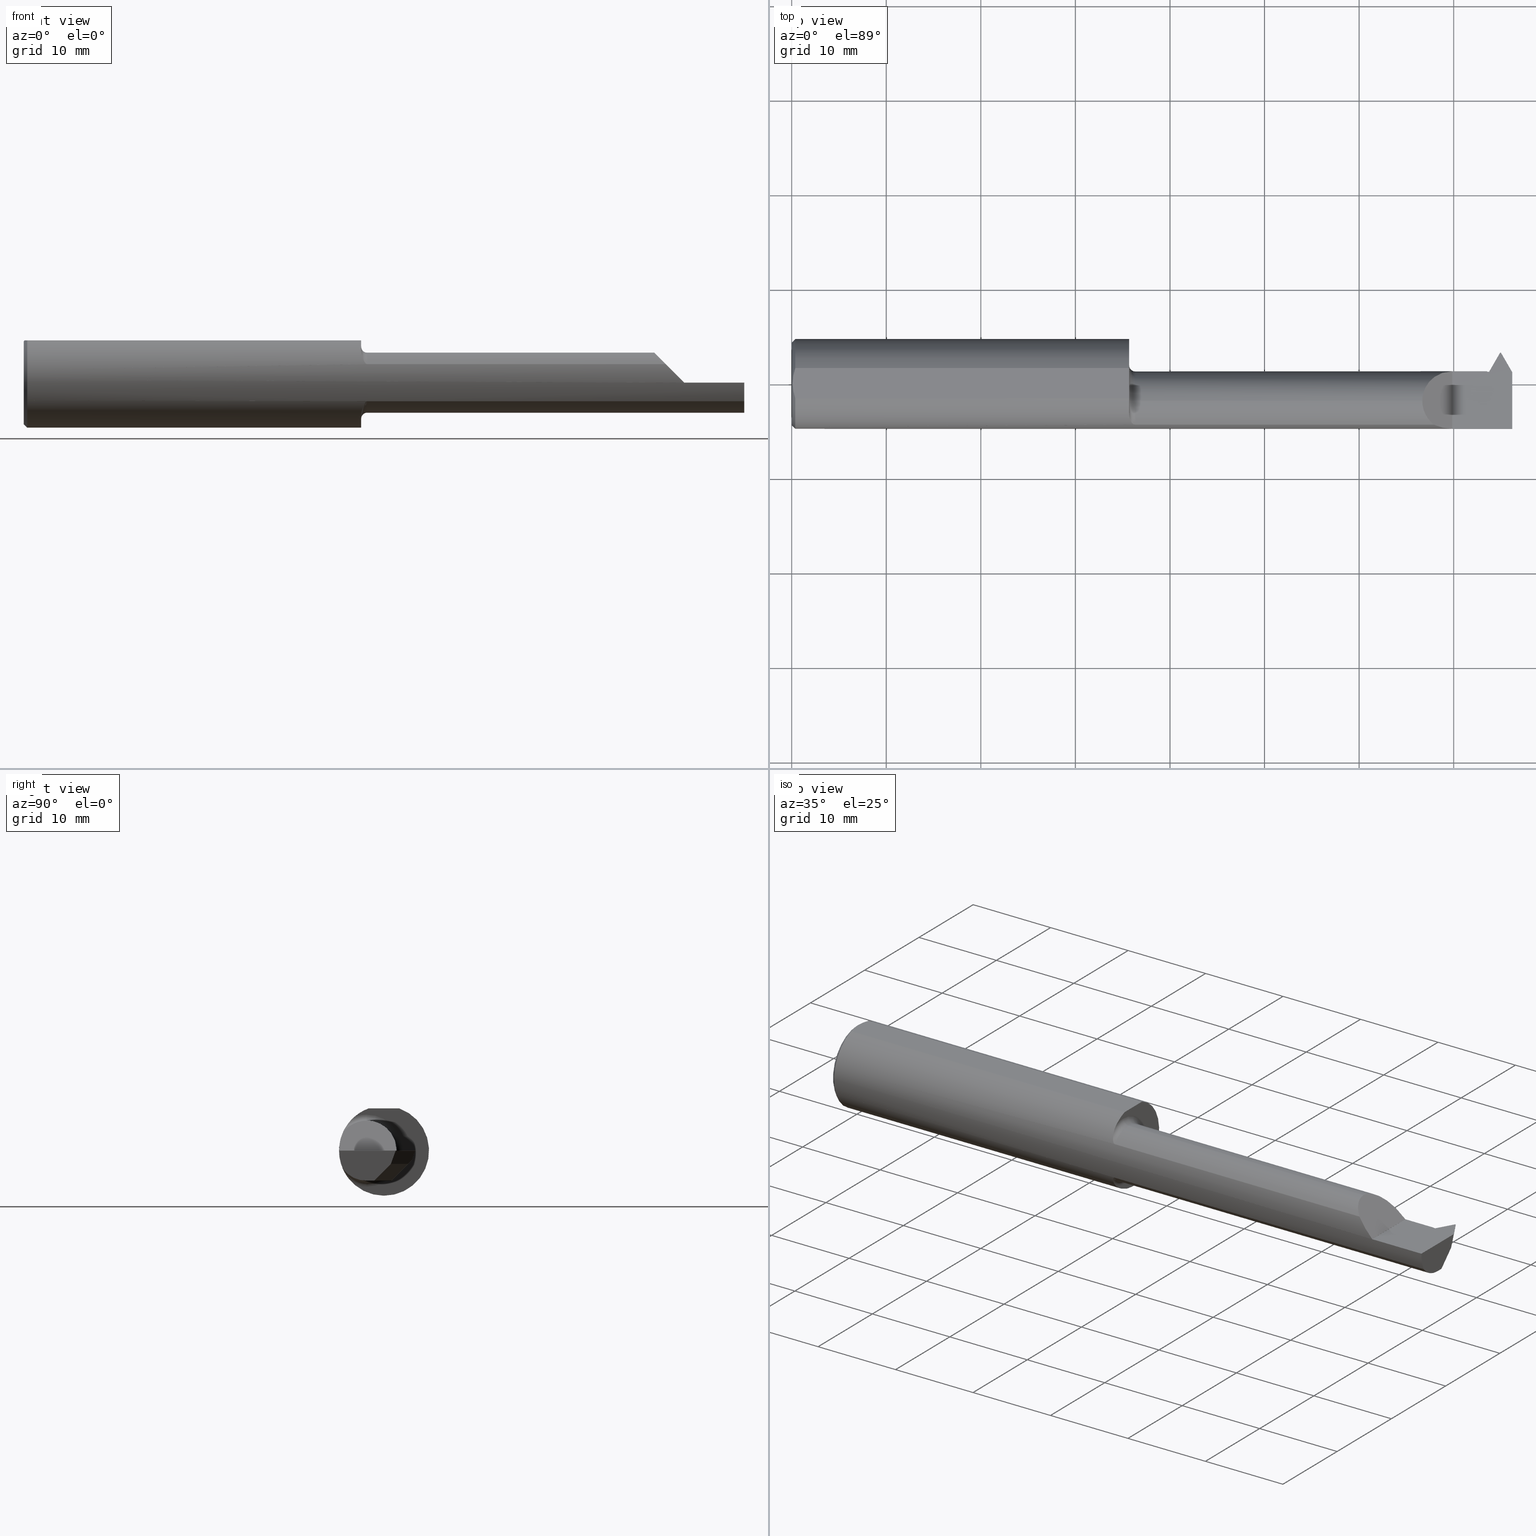
[diagram: canonical four-view strip — front | top / right | iso, engineering-drawing reading convention]
A machine part, canonical four-view strip (front | top / right | iso — engineering-drawing reading convention). The complete STEP part file that produces these views, byte-faithful:
ISO-10303-21;
HEADER;
FILE_DESCRIPTION (( 'STEP AP203' ),
    '1' );
FILE_NAME ('230403-TT3201500.STEP',
    '2025-04-22T22:49:13',
    ( '' ),
    ( '' ),
    'SwSTEP 2.0',
    'SolidWorks 2024',
    '' );
FILE_SCHEMA (( 'CONFIG_CONTROL_DESIGN' ));
ENDSEC;

DATA;
#1 = EDGE_CURVE ( 'NONE', #896, #42, #100, .T. ) ;
#2 = CARTESIAN_POINT ( 'NONE',  ( 0.000000000000000000, 0.000000000000000000, 0.000000000000000000 ) ) ;
#3 = CARTESIAN_POINT ( 'NONE',  ( 1.429999999999999938, -0.1707639599170698019, -0.07706940050007766996 ) ) ;
#4 = CARTESIAN_POINT ( 'NONE',  ( 1.405000000000000249, -0.07234999999999998377, -0.1499999999999999944 ) ) ;
#5 =( BOUNDED_CURVE ( )  B_SPLINE_CURVE ( 3, ( #352, #504, #280, #795 ),
 .UNSPECIFIED., .F., .F. ) 
 B_SPLINE_CURVE_WITH_KNOTS ( ( 4, 4 ),
 ( 1.139420741225466882, 1.570796326794926756 ),
 .UNSPECIFIED. ) 
 CURVE ( )  GEOMETRIC_REPRESENTATION_ITEM ( )  RATIONAL_B_SPLINE_CURVE ( ( 1.000000000000000000, 0.9845529495419456101, 0.9845529495419456101, 1.000000000000000000 ) ) 
 REPRESENTATION_ITEM ( '' )  );
#6 = VERTEX_POINT ( 'NONE', #572 ) ;
#7 = AXIS2_PLACEMENT_3D ( 'NONE', #642, #810, #948 ) ;
#8 = CARTESIAN_POINT ( 'NONE',  ( 2.885548931050876398, 0.04119893105087691493, -0.05226509597430395448 ) ) ;
#9 = EDGE_CURVE ( 'NONE', #251, #646, #354, .T. ) ;
#10 = AXIS2_PLACEMENT_3D ( 'NONE', #136, #591, #956 ) ;
#11 = DIRECTION ( 'NONE',  ( 0.5000000000000009992, 0.8660254037844379305, 0.000000000000000000 ) ) ;
#12 = ORIENTED_EDGE ( 'NONE', *, *, #644, .F. ) ;
#13 = VERTEX_POINT ( 'NONE', #255 ) ;
#14 = PERSON_AND_ORGANIZATION_ROLE ( 'creator' ) ;
#15 = DIRECTION ( 'NONE',  ( -1.000000000000000000, -0.000000000000000000, -0.000000000000000000 ) ) ;
#16 = EDGE_CURVE ( 'NONE', #983, #82, #107, .T. ) ;
#17 = EDGE_CURVE ( 'NONE', #130, #91, #707, .T. ) ;
#18 = ORIENTED_EDGE ( 'NONE', *, *, #450, .T. ) ;
#19 =( LENGTH_UNIT ( ) NAMED_UNIT ( * ) SI_UNIT ( $, .METRE. ) );
#20 = DIRECTION ( 'NONE',  ( 6.811316685971685944E-15, -0.9396926207859128688, 0.3420201433256565560 ) ) ;
#21 = ORIENTED_EDGE ( 'NONE', *, *, #739, .F. ) ;
#22 = DATE_AND_TIME ( #699, #668 ) ;
#23 = LINE ( 'NONE', #780, #462 ) ;
#24 = AXIS2_PLACEMENT_3D ( 'NONE', #725, #882, #949 ) ;
#25 = AXIS2_PLACEMENT_3D ( 'NONE', #854, #720, #41 ) ;
#26 = ADVANCED_FACE ( 'NONE', ( #403 ), #494, .T. ) ;
#27 = CARTESIAN_POINT ( 'NONE',  ( 3.000000000000000444, -0.07234999999999998377, 0.000000000000000000 ) ) ;
#28 = PERSON_AND_ORGANIZATION_ROLE ( 'creator' ) ;
#29 = DIRECTION ( 'NONE',  ( -1.000000000000000000, -0.000000000000000000, -0.000000000000000000 ) ) ;
#30 = DIRECTION ( 'NONE',  ( 0.000000000000000000, -1.000000000000000000, 0.000000000000000000 ) ) ;
#31 = ORIENTED_EDGE ( 'NONE', *, *, #664, .F. ) ;
#32 = EDGE_CURVE ( 'NONE', #689, #13, #930, .T. ) ;
#33 = DIRECTION ( 'NONE',  ( 0.000000000000000000, -0.7071067811865499042, -0.7071067811865451302 ) ) ;
#34 = CARTESIAN_POINT ( 'NONE',  ( 2.750000000000000444, -0.07234999999999998377, 0.000000000000000000 ) ) ;
#35 = DIRECTION ( 'NONE',  ( -0.4999999999999960032, 0.8660254037844408170, -2.229828567416428222E-16 ) ) ;
#36 = VECTOR ( 'NONE', #628, 39.37007874015748854 ) ;
#37 = EDGE_LOOP ( 'NONE', ( #625, #442, #172, #768 ) ) ;
#38 = CARTESIAN_POINT ( 'NONE',  ( 2.913734622005792918, 0.008361908784099300607, -0.09544939905744456721 ) ) ;
#39 = CARTESIAN_POINT ( 'NONE',  ( 1.405000000000000249, -0.07234999999999996989, -0.1250000000000000000 ) ) ;
#40 = AXIS2_PLACEMENT_3D ( 'NONE', #193, #643, #433 ) ;
#41 = DIRECTION ( 'NONE',  ( 0.000000000000000000, 0.000000000000000000, 1.000000000000000000 ) ) ;
#42 = VERTEX_POINT ( 'NONE', #350 ) ;
#43 = CARTESIAN_POINT ( 'NONE',  ( 2.951000000000000512, 0.1133568358907695028, -0.05500000000000006967 ) ) ;
#44 = CARTESIAN_POINT ( 'NONE',  ( 1.405000000000000693, -0.1343272889970693607, -0.1314247431986991232 ) ) ;
#45 = EDGE_CURVE ( 'NONE', #635, #541, #777, .T. ) ;
#46 = ORIENTED_EDGE ( 'NONE', *, *, #966, .T. ) ;
#47 = ORIENTED_EDGE ( 'NONE', *, *, #17, .F. ) ;
#48 = FACE_OUTER_BOUND ( 'NONE', #376, .T. ) ;
#49 = CC_DESIGN_PERSON_AND_ORGANIZATION_ASSIGNMENT ( #472, #772, ( #576 ) ) ;
#50 = EDGE_CURVE ( 'NONE', #242, #550, #482, .T. ) ;
#51 = LINE ( 'NONE', #282, #959 ) ;
#52 = FACE_OUTER_BOUND ( 'NONE', #297, .T. ) ;
#53 = VERTEX_POINT ( 'NONE', #797 ) ;
#54 = CARTESIAN_POINT ( 'NONE',  ( 0.004000000000003662952, -0.01076149482173470104, 0.1763499999999999512 ) ) ;
#55 = DIRECTION ( 'NONE',  ( 0.000000000000000000, -0.7071067811865511255, -0.7071067811865437980 ) ) ;
#56 = VECTOR ( 'NONE', #866, 39.37007874015748854 ) ;
#57 = CYLINDRICAL_SURFACE ( 'NONE', #911, 0.1250000000000000000 ) ;
#58 = AXIS2_PLACEMENT_3D ( 'NONE', #168, #719, #420 ) ;
#59 = VECTOR ( 'NONE', #35, 39.37007874015748854 ) ;
#60 = EDGE_LOOP ( 'NONE', ( #110, #65, #846, #656, #418, #252 ) ) ;
#61 = ADVANCED_FACE ( 'NONE', ( #946 ), #272, .T. ) ;
#62 = CARTESIAN_POINT ( 'NONE',  ( 0.004991821518936828857, -0.02143118227845417639, 0.1763499999999999790 ) ) ;
#63 = DIRECTION ( 'NONE',  ( 0.000000000000000000, 0.000000000000000000, -1.000000000000000000 ) ) ;
#64 = DIRECTION ( 'NONE',  ( -0.9840406976462907629, 5.376499211098003506E-15, 0.1779435454738421407 ) ) ;
#65 = ORIENTED_EDGE ( 'NONE', *, *, #102, .T. ) ;
#66 = DIRECTION ( 'NONE',  ( 0.000000000000000000, 0.000000000000000000, -1.000000000000000000 ) ) ;
#67 = DIRECTION ( 'NONE',  ( 0.000000000000000000, 1.775701195881771191E-15, -1.000000000000000000 ) ) ;
#68 = AXIS2_PLACEMENT_3D ( 'NONE', #786, #413, #366 ) ;
#69 = CC_DESIGN_DATE_AND_TIME_ASSIGNMENT ( #479, #779, ( #151 ) ) ;
#70 = ORIENTED_EDGE ( 'NONE', *, *, #77, .T. ) ;
#71 = DIRECTION ( 'NONE',  ( -0.2521791579305402986, -0.6842534882283953790, -0.6842534882283881625 ) ) ;
#72 = CARTESIAN_POINT ( 'NONE',  ( 2.894999999999999574, 0.05065000000000000058, 0.000000000000000000 ) ) ;
#73 = ORIENTED_EDGE ( 'NONE', *, *, #283, .T. ) ;
#74 = VECTOR ( 'NONE', #498, 39.37007874015748854 ) ;
#75 = CARTESIAN_POINT ( 'NONE',  ( 1.405000000000000249, 0.05265000000000001623, -6.429183357567480113E-17 ) ) ;
#76 = CARTESIAN_POINT ( 'NONE',  ( 1.405000000000000249, -0.1232518659295093050, 0.1410992560040422727 ) ) ;
#77 = EDGE_CURVE ( 'NONE', #130, #414, #285, .T. ) ;
#78 = VERTEX_POINT ( 'NONE', #123 ) ;
#79 = CARTESIAN_POINT ( 'NONE',  ( 1.405000000000000249, 0.2526500000000000412, 0.000000000000000000 ) ) ;
#80 = CARTESIAN_POINT ( 'NONE',  ( 2.909054084941630869, -0.01574417682531629309, -0.1114485566650213616 ) ) ;
#81 = CARTESIAN_POINT ( 'NONE',  ( 1.405000000000000249, -0.1232518659295093050, -0.1410992560040422727 ) ) ;
#82 = VERTEX_POINT ( 'NONE', #421 ) ;
#83 = LINE ( 'NONE', #615, #220 ) ;
#84 = PERSON_AND_ORGANIZATION_ROLE ( 'design_owner' ) ;
#85 = CARTESIAN_POINT ( 'NONE',  ( 2.625350000000000517, -0.07234999999999998377, 0.1250000000000000000 ) ) ;
#86 = VERTEX_POINT ( 'NONE', #726 ) ;
#87 = EDGE_CURVE ( 'NONE', #530, #880, #581, .T. ) ;
#88 = EDGE_CURVE ( 'NONE', #709, #936, #317, .T. ) ;
#89 = VECTOR ( 'NONE', #538, 39.37007874015748143 ) ;
#90 = LINE ( 'NONE', #549, #597 ) ;
#91 = VERTEX_POINT ( 'NONE', #259 ) ;
#92 = CC_DESIGN_PERSON_AND_ORGANIZATION_ASSIGNMENT ( #253, #554, ( #151 ) ) ;
#93 = EDGE_LOOP ( 'NONE', ( #850, #502, #334, #713 ) ) ;
#94 = CARTESIAN_POINT ( 'NONE',  ( 2.890128570000000341, 0.06224597133487154432, -0.1879385241571835119 ) ) ;
#95 = B_SPLINE_CURVE_WITH_KNOTS ( 'NONE', 3,
 ( #138, #539, #838, #744, #435, #890, #219, #385, #680, #506, #163, #801, #458, #129 ),
 .UNSPECIFIED., .F., .F.,
 ( 4, 2, 2, 2, 2, 2, 4 ),
 ( 0.000000000000000000, 0.0001403017184444719210, 0.0002806034368889438421, 0.0005612068737778984177, 0.001122413747555806593, 0.001683620621333714769, 0.002244827495111622728 ),
 .UNSPECIFIED. ) ;
#96 = EDGE_LOOP ( 'NONE', ( #927, #18, #589, #194, #542, #674 ) ) ;
#97 = VERTEX_POINT ( 'NONE', #703 ) ;
#98 = PLANE ( 'NONE',  #241 ) ;
#99 = EDGE_CURVE ( 'NONE', #53, #824, #561, .T. ) ;
#100 = LINE ( 'NONE', #639, #301 ) ;
#101 = ORIENTED_EDGE ( 'NONE', *, *, #114, .T. ) ;
#102 = EDGE_CURVE ( 'NONE', #936, #892, #495, .T. ) ;
#103 = AXIS2_PLACEMENT_3D ( 'NONE', #829, #147, #816 ) ;
#104 = PERSON_AND_ORGANIZATION ( #586, #386 ) ;
#105 = AXIS2_PLACEMENT_3D ( 'NONE', #148, #752, #610 ) ;
#106 = VECTOR ( 'NONE', #791, 39.37007874015748143 ) ;
#107 =( BOUNDED_CURVE ( )  B_SPLINE_CURVE ( 3, ( #712, #417, #941, #267 ),
 .UNSPECIFIED., .F., .T. ) 
 B_SPLINE_CURVE_WITH_KNOTS ( ( 4, 4 ),
 ( 2.826149962439213681, 3.058127945359548239 ),
 .UNSPECIFIED. ) 
 CURVE ( )  GEOMETRIC_REPRESENTATION_ITEM ( )  RATIONAL_B_SPLINE_CURVE ( ( 1.000000000000000000, 0.9955205433440609264, 0.9955205433440609264, 1.000000000000000000 ) ) 
 REPRESENTATION_ITEM ( '' )  );
#108 = DIRECTION ( 'NONE',  ( 0.000000000000000000, 0.000000000000000000, -1.000000000000000000 ) ) ;
#109 = EDGE_CURVE ( 'NONE', #794, #914, #390, .T. ) ;
#110 = ORIENTED_EDGE ( 'NONE', *, *, #88, .T. ) ;
#111 = FACE_OUTER_BOUND ( 'NONE', #167, .T. ) ;
#112 = AXIS2_PLACEMENT_3D ( 'NONE', #588, #290, #133 ) ;
#113 = DIRECTION ( 'NONE',  ( 1.000000000000000000, 0.000000000000000000, 0.000000000000000000 ) ) ;
#114 = EDGE_CURVE ( 'NONE', #409, #920, #665, .T. ) ;
#115 = ORIENTED_EDGE ( 'NONE', *, *, #388, .T. ) ;
#116 = VECTOR ( 'NONE', #11, 39.37007874015748854 ) ;
#117 = LINE ( 'NONE', #43, #363 ) ;
#118 = DIRECTION ( 'NONE',  ( -0.1021978390768664702, 0.1770118497048815687, 0.9788883525469466163 ) ) ;
#119 = VERTEX_POINT ( 'NONE', #765 ) ;
#120 = VERTEX_POINT ( 'NONE', #85 ) ;
#121 = CARTESIAN_POINT ( 'NONE',  ( 2.917651630723346212, -0.04248585645573376562, -0.1250000000000000555 ) ) ;
#122 = DIRECTION ( 'NONE',  ( 0.001253963230748300108, -0.3420198744252467837, -0.9396918819881090457 ) ) ;
#123 = CARTESIAN_POINT ( 'NONE',  ( 1.429999999999999938, -0.07234999999999998377, 0.1250000000000000000 ) ) ;
#124 = PRODUCT_DEFINITION ( 'UNKNOWN', '', #576, #716 ) ;
#125 = ADVANCED_FACE ( 'NONE', ( #429 ), #611, .F. ) ;
#126 = VERTEX_POINT ( 'NONE', #4 ) ;
#127 = CARTESIAN_POINT ( 'NONE',  ( 2.673280599499922694, -0.1707639599170701628, 0.07706940050007689280 ) ) ;
#128 = CARTESIAN_POINT ( 'NONE',  ( 1.405000000000000249, -0.1232518659295093050, -0.1410992560040422727 ) ) ;
#129 = CARTESIAN_POINT ( 'NONE',  ( 1.405000000000000249, -0.1232518659295093050, 0.1410992560040422727 ) ) ;
#130 = VERTEX_POINT ( 'NONE', #320 ) ;
#131 = DIRECTION ( 'NONE',  ( -0.7071067811865465735, 0.000000000000000000, 0.7071067811865483499 ) ) ;
#132 = LINE ( 'NONE', #566, #392 ) ;
#133 = DIRECTION ( 'NONE',  ( 0.000000000000000000, 0.000000000000000000, -1.000000000000000000 ) ) ;
#134 = ORIENTED_EDGE ( 'NONE', *, *, #388, .F. ) ;
#135 = CARTESIAN_POINT ( 'NONE',  ( 2.918197582037928672, -0.07235000000000001152, -0.1250000000000000000 ) ) ;
#136 = CARTESIAN_POINT ( 'NONE',  ( 0.01500000000000407431, 0.000000000000000000, 0.000000000000000000 ) ) ;
#137 = AXIS2_PLACEMENT_3D ( 'NONE', #380, #438, #980 ) ;
#138 = CARTESIAN_POINT ( 'NONE',  ( 1.429999999999999938, -0.1707639599170698019, 0.07706940050007766996 ) ) ;
#139 = VECTOR ( 'NONE', #663, 39.37007874015748143 ) ;
#140 = ORIENTED_EDGE ( 'NONE', *, *, #461, .F. ) ;
#141 = FACE_OUTER_BOUND ( 'NONE', #60, .T. ) ;
#142 =( BOUNDED_CURVE ( )  B_SPLINE_CURVE ( 3, ( #853, #181, #170, #922 ),
 .UNSPECIFIED., .F., .F. ) 
 B_SPLINE_CURVE_WITH_KNOTS ( ( 4, 4 ),
 ( 4.715188984043368059, 6.283185307179586232 ),
 .UNSPECIFIED. ) 
 CURVE ( )  GEOMETRIC_REPRESENTATION_ITEM ( )  RATIONAL_B_SPLINE_CURVE ( ( 1.000000000000000000, 0.8053973591226792905, 0.8053973591226792905, 1.000000000000000000 ) ) 
 REPRESENTATION_ITEM ( '' )  );
#143 = DIRECTION ( 'NONE',  ( 0.000000000000000000, 0.000000000000000000, -1.000000000000000000 ) ) ;
#144 = CARTESIAN_POINT ( 'NONE',  ( 0.000000000000000000, 2.202527268266490391E-17, 0.1723499999999960064 ) ) ;
#145 = VECTOR ( 'NONE', #812, 39.37007874015748143 ) ;
#146 = EDGE_LOOP ( 'NONE', ( #47, #184, #115, #46, #651, #975, #445, #788, #302, #240, #396, #631, #557, #474 ) ) ;
#147 = DIRECTION ( 'NONE',  ( 0.9947640934854957706, 0.01818544582510172800, 0.1005668328631371400 ) ) ;
#148 = CARTESIAN_POINT ( 'NONE',  ( 1.429999999999999938, -0.07234999999999998377, 0.000000000000000000 ) ) ;
#149 = VECTOR ( 'NONE', #313, 39.37007874015748143 ) ;
#150 = ORIENTED_EDGE ( 'NONE', *, *, #637, .T. ) ;
#151 = SECURITY_CLASSIFICATION ( '', '', #928 ) ;
#152 = CARTESIAN_POINT ( 'NONE',  ( 3.000000000000000444, 0.04278184266129961971, -0.01547243479515537749 ) ) ;
#153 = PRODUCT ( '230403-TT3201500', '230403-TT3201500', '', ( #764 ) ) ;
#154 = CARTESIAN_POINT ( 'NONE',  ( 1.429999999999999938, -0.07234999999999996989, 0.1499999999999999944 ) ) ;
#155 = ORIENTED_EDGE ( 'NONE', *, *, #401, .F. ) ;
#156 = VECTOR ( 'NONE', #878, 39.37007874015748143 ) ;
#157 = CARTESIAN_POINT ( 'NONE',  ( 2.750000000000000444, 0.2999999999999999889, -6.429183357567480113E-17 ) ) ;
#158 = DIRECTION ( 'NONE',  ( 0.000000000000000000, 0.000000000000000000, 1.000000000000000000 ) ) ;
#159 = ORIENTED_EDGE ( 'NONE', *, *, #560, .F. ) ;
#160 = ORIENTED_EDGE ( 'NONE', *, *, #919, .F. ) ;
#161 = FACE_OUTER_BOUND ( 'NONE', #179, .T. ) ;
#162 = CARTESIAN_POINT ( 'NONE',  ( 2.750000000000000444, -0.1873499999999999610, -6.429183357567478880E-17 ) ) ;
#163 = CARTESIAN_POINT ( 'NONE',  ( 1.407031986092417419, -0.1437385609081069937, 0.1203809478627893836 ) ) ;
#164 = AXIS2_PLACEMENT_3D ( 'NONE', #736, #441, #286 ) ;
#165 = ADVANCED_FACE ( 'NONE', ( #52 ), #617, .F. ) ;
#166 = ORIENTED_EDGE ( 'NONE', *, *, #471, .F. ) ;
#167 = EDGE_LOOP ( 'NONE', ( #904, #855, #391, #454 ) ) ;
#168 = CARTESIAN_POINT ( 'NONE',  ( 1.405000000000000249, -0.07234999999999998377, 0.000000000000000000 ) ) ;
#169 = PERSON_AND_ORGANIZATION ( #586, #386 ) ;
#170 = CARTESIAN_POINT ( 'NONE',  ( 2.625350000000000517, 0.0007108448279454899175, 0.1250000000000000000 ) ) ;
#171 = ORIENTED_EDGE ( 'NONE', *, *, #382, .F. ) ;
#172 = ORIENTED_EDGE ( 'NONE', *, *, #966, .F. ) ;
#173 = PERSON_AND_ORGANIZATION ( #586, #386 ) ;
#174 = CARTESIAN_POINT ( 'NONE',  ( 2.908768555666733313, 0.04119893105087690799, -0.05226509597430400306 ) ) ;
#175 = ORIENTED_EDGE ( 'NONE', *, *, #109, .T. ) ;
#176 = PERSON_AND_ORGANIZATION ( #586, #386 ) ;
#177 = CARTESIAN_POINT ( 'NONE',  ( 2.750000000000000444, 0.05264950999903968143, 0.0003499999999995605151 ) ) ;
#178 = EDGE_CURVE ( 'NONE', #120, #727, #411, .T. ) ;
#179 = EDGE_LOOP ( 'NONE', ( #191, #291, #750, #150 ) ) ;
#180 = COORDINATED_UNIVERSAL_TIME_OFFSET ( 8, 0, .BEHIND. ) ;
#181 = CARTESIAN_POINT ( 'NONE',  ( 2.676939441571128508, 0.05244493963352150206, 0.07341055842887220240 ) ) ;
#182 = EDGE_CURVE ( 'NONE', #6, #197, #711, .T. ) ;
#183 = CARTESIAN_POINT ( 'NONE',  ( 3.004904134078942413, 0.1367215348535018304, -0.1250000000000000278 ) ) ;
#184 = ORIENTED_EDGE ( 'NONE', *, *, #437, .F. ) ;
#185 = CIRCLE ( 'NONE', #234, 0.1723499999999960064 ) ;
#186 = DIRECTION ( 'NONE',  ( -0.000000000000000000, 0.000000000000000000, -1.000000000000000000 ) ) ;
#187 = CIRCLE ( 'NONE', #330, 0.1250000000000000000 ) ;
#188 = VECTOR ( 'NONE', #650, 39.37007874015748143 ) ;
#189 = EDGE_CURVE ( 'NONE', #119, #808, #514, .T. ) ;
#190 = DIRECTION ( 'NONE',  ( -1.000000000000000000, -7.248451818505326452E-15, 0.000000000000000000 ) ) ;
#191 = ORIENTED_EDGE ( 'NONE', *, *, #708, .F. ) ;
#192 = FACE_OUTER_BOUND ( 'NONE', #926, .T. ) ;
#193 = CARTESIAN_POINT ( 'NONE',  ( 2.903311978464827359, 0.05065000000000000058, 0.000000000000000000 ) ) ;
#194 = ORIENTED_EDGE ( 'NONE', *, *, #655, .T. ) ;
#195 = EDGE_CURVE ( 'NONE', #896, #360, #501, .T. ) ;
#196 = ADVANCED_FACE ( 'NONE', ( #215 ), #57, .T. ) ;
#197 = VERTEX_POINT ( 'NONE', #144 ) ;
#198 = DIRECTION ( 'NONE',  ( 0.000000000000000000, 0.000000000000000000, -1.000000000000000000 ) ) ;
#199 = DIRECTION ( 'NONE',  ( -0.000000000000000000, 1.000000000000000000, -2.417245856451656750E-16 ) ) ;
#200 = AXIS2_PLACEMENT_3D ( 'NONE', #679, #743, #63 ) ;
#201 = DIRECTION ( 'NONE',  ( 1.000000000000000000, -0.000000000000000000, -0.000000000000000000 ) ) ;
#202 = VERTEX_POINT ( 'NONE', #81 ) ;
#203 = DIRECTION ( 'NONE',  ( 0.000000000000000000, 0.000000000000000000, -1.000000000000000000 ) ) ;
#204 = DIRECTION ( 'NONE',  ( -1.000000000000000000, -0.000000000000000000, -0.000000000000000000 ) ) ;
#205 = CIRCLE ( 'NONE', #535, 0.1250000000000000000 ) ;
#206 = CARTESIAN_POINT ( 'NONE',  ( 2.909054084941630869, 0.03909855666502102395, -0.05660582317468441232 ) ) ;
#207 = ORIENTED_EDGE ( 'NONE', *, *, #99, .T. ) ;
#208 = DIRECTION ( 'NONE',  ( -0.1021978390768664702, 0.1770118497048815687, 0.9788883525469466163 ) ) ;
#209 = EDGE_CURVE ( 'NONE', #920, #689, #598, .T. ) ;
#210 = CARTESIAN_POINT ( 'NONE',  ( 2.894999999999999574, 0.05065000000000000058, 0.000000000000000000 ) ) ;
#211 = ORIENTED_EDGE ( 'NONE', *, *, #813, .T. ) ;
#212 = CARTESIAN_POINT ( 'NONE',  ( 2.750000000000000444, 0.05265000000000000235, -6.429183357567478880E-17 ) ) ;
#213 = FACE_OUTER_BOUND ( 'NONE', #310, .T. ) ;
#214 = EDGE_CURVE ( 'NONE', #449, #936, #95, .T. ) ;
#215 = FACE_OUTER_BOUND ( 'NONE', #582, .T. ) ;
#216 = VERTEX_POINT ( 'NONE', #174 ) ;
#217 = DIRECTION ( 'NONE',  ( -1.000000000000000000, 0.000000000000000000, -0.000000000000000000 ) ) ;
#218 = DIRECTION ( 'NONE',  ( 0.7071067811865499042, 8.659560562354903276E-17, 0.7071067811865451302 ) ) ;
#219 = CARTESIAN_POINT ( 'NONE',  ( 1.417679829691370408, -0.1652024577544480566, 0.08842811073770914798 ) ) ;
#220 = VECTOR ( 'NONE', #243, 39.37007874015748854 ) ;
#221 = ORIENTED_EDGE ( 'NONE', *, *, #820, .F. ) ;
#222 = CARTESIAN_POINT ( 'NONE',  ( 1.429999999999999938, -0.07234999999999998377, 0.000000000000000000 ) ) ;
#223 = CARTESIAN_POINT ( 'NONE',  ( 2.949499999999999567, 0.1306500000000036243, -6.429183357567480113E-17 ) ) ;
#224 = ORIENTED_EDGE ( 'NONE', *, *, #189, .T. ) ;
#225 = EDGE_CURVE ( 'NONE', #414, #86, #695, .T. ) ;
#226 = DIRECTION ( 'NONE',  ( 0.000000000000000000, -0.9840406976462907629, 0.1779435454738421407 ) ) ;
#227 = CARTESIAN_POINT ( 'NONE',  ( 0.01500000000000407431, 0.000000000000000000, 0.000000000000000000 ) ) ;
#228 = CC_DESIGN_PERSON_AND_ORGANIZATION_ASSIGNMENT ( #173, #28, ( #576 ) ) ;
#229 = EDGE_CURVE ( 'NONE', #216, #677, #412, .T. ) ;
#230 = EDGE_LOOP ( 'NONE', ( #760, #909, #593, #602, #692 ) ) ;
#231 = CC_DESIGN_APPROVAL ( #333, ( #124 ) ) ;
#232 = FACE_OUTER_BOUND ( 'NONE', #547, .T. ) ;
#233 = CARTESIAN_POINT ( 'NONE',  ( 1.429999999999999938, -0.07234999999999996989, -0.1250000000000000000 ) ) ;
#234 = AXIS2_PLACEMENT_3D ( 'NONE', #2, #603, #757 ) ;
#235 = ORIENTED_EDGE ( 'NONE', *, *, #637, .F. ) ;
#236 = CIRCLE ( 'NONE', #613, 0.1873499999999999888 ) ;
#237 = PLANE ( 'NONE',  #103 ) ;
#238 = DIRECTION ( 'NONE',  ( 0.000000000000000000, 0.000000000000000000, -1.000000000000000000 ) ) ;
#239 = DIRECTION ( 'NONE',  ( 0.000000000000000000, 0.000000000000000000, 1.000000000000000000 ) ) ;
#240 = ORIENTED_EDGE ( 'NONE', *, *, #925, .T. ) ;
#241 = AXIS2_PLACEMENT_3D ( 'NONE', #621, #186, #710 ) ;
#242 = VERTEX_POINT ( 'NONE', #177 ) ;
#243 = DIRECTION ( 'NONE',  ( -0.09000871797896797810, 0.6219594709071128991, 0.7778591435708180901 ) ) ;
#244 = APPLICATION_PROTOCOL_DEFINITION ( 'international standard', 'config_control_design', 1994, #943 ) ;
#245 = EDGE_LOOP ( 'NONE', ( #140, #978, #840, #287, #335 ) ) ;
#246 = CC_DESIGN_APPROVAL ( #491, ( #151 ) ) ;
#247 = CARTESIAN_POINT ( 'NONE',  ( 2.909054084941630869, 0.04070437983970538742, -0.05500000000000006967 ) ) ;
#248 = ORIENTED_EDGE ( 'NONE', *, *, #189, .F. ) ;
#249 =( NAMED_UNIT ( * ) PLANE_ANGLE_UNIT ( ) SI_UNIT ( $, .RADIAN. ) );
#250 = CARTESIAN_POINT ( 'NONE',  ( 1.405000000000000249, 0.000000000000000000, 0.000000000000000000 ) ) ;
#251 = VERTEX_POINT ( 'NONE', #477 ) ;
#252 = ORIENTED_EDGE ( 'NONE', *, *, #889, .T. ) ;
#253 = PERSON_AND_ORGANIZATION ( #586, #386 ) ;
#254 = DIRECTION ( 'NONE',  ( 0.000000000000000000, -0.3420201433256565560, -0.9396926207859128688 ) ) ;
#255 = CARTESIAN_POINT ( 'NONE',  ( 2.917154022199686114, -0.01526611729122332763, -0.1250000000000000000 ) ) ;
#256 = ORIENTED_EDGE ( 'NONE', *, *, #109, .F. ) ;
#257 = APPROVAL_STATUS ( 'not_yet_approved' ) ;
#258 = PLANE ( 'NONE',  #844 ) ;
#259 = CARTESIAN_POINT ( 'NONE',  ( 1.429999999999999938, -0.1707639599170698019, -0.07706940050007766996 ) ) ;
#260 = ORIENTED_EDGE ( 'NONE', *, *, #361, .T. ) ;
#261 = AXIS2_PLACEMENT_3D ( 'NONE', #419, #590, #198 ) ;
#262 = CARTESIAN_POINT ( 'NONE',  ( 0.01157529649259233726, -0.05310709997271137461, 0.1763500000000000068 ) ) ;
#263 = VECTOR ( 'NONE', #218, 39.37007874015748143 ) ;
#264 = CYLINDRICAL_SURFACE ( 'NONE', #520, 0.1250000000000000000 ) ;
#265 = ADVANCED_FACE ( 'NONE', ( #324 ), #98, .F. ) ;
#266 = EDGE_CURVE ( 'NONE', #709, #845, #690, .T. ) ;
#267 = CARTESIAN_POINT ( 'NONE',  ( 2.913734622005792918, 0.008361908784099300607, -0.09544939905744456721 ) ) ;
#268 = EDGE_LOOP ( 'NONE', ( #614, #864, #326 ) ) ;
#269 = PLANE ( 'NONE',  #562 ) ;
#270 = VECTOR ( 'NONE', #29, 39.37007874015748143 ) ;
#271 = DIRECTION ( 'NONE',  ( 0.000000000000000000, 0.000000000000000000, 1.000000000000000000 ) ) ;
#272 = PLANE ( 'NONE',  #940 ) ;
#273 = ORIENTED_EDGE ( 'NONE', *, *, #195, .T. ) ;
#274 =( BOUNDED_CURVE ( )  B_SPLINE_CURVE ( 3, ( #135, #121, #565, #38 ),
 .UNSPECIFIED., .F., .T. ) 
 B_SPLINE_CURVE_WITH_KNOTS ( ( 4, 4 ),
 ( 3.320488901919211866, 4.022422357086412603 ),
 .UNSPECIFIED. ) 
 CURVE ( )  GEOMETRIC_REPRESENTATION_ITEM ( )  RATIONAL_B_SPLINE_CURVE ( ( 1.000000000000000000, 0.9593605234527321501, 0.9593605234527321501, 1.000000000000000000 ) ) 
 REPRESENTATION_ITEM ( '' )  );
#275 = CARTESIAN_POINT ( 'NONE',  ( 2.949446622366126647, 0.1160911906293561058, -0.04000000000000001471 ) ) ;
#276 = DIRECTION ( 'NONE',  ( 0.000000000000000000, 0.000000000000000000, -1.000000000000000000 ) ) ;
#277 = DIRECTION ( 'NONE',  ( 1.000000000000000000, 0.000000000000000000, 0.000000000000000000 ) ) ;
#278 = EDGE_CURVE ( 'NONE', #689, #541, #933, .T. ) ;
#279 = ORIENTED_EDGE ( 'NONE', *, *, #77, .F. ) ;
#280 = CARTESIAN_POINT ( 'NONE',  ( 2.891724317005159861, 0.05265000000000000929, -0.01811476426934099243 ) ) ;
#281 = CIRCLE ( 'NONE', #533, 0.1499999999999999944 ) ;
#282 = CARTESIAN_POINT ( 'NONE',  ( 0.01500000000000407431, 0.000000000000000000, -0.1873499999999999888 ) ) ;
#283 = EDGE_CURVE ( 'NONE', #86, #13, #90, .T. ) ;
#284 = AXIS2_PLACEMENT_3D ( 'NONE', #222, #292, #886 ) ;
#285 = CIRCLE ( 'NONE', #831, 0.1250000000000000000 ) ;
#286 = DIRECTION ( 'NONE',  ( 0.000000000000000000, -1.000000000000000000, 2.417245856451656257E-16 ) ) ;
#287 = ORIENTED_EDGE ( 'NONE', *, *, #900, .T. ) ;
#288 = EDGE_CURVE ( 'NONE', #120, #78, #23, .T. ) ;
#289 = CARTESIAN_POINT ( 'NONE',  ( 1.417704374933955069, -0.1652286770924342729, -0.08837992419368186081 ) ) ;
#290 = DIRECTION ( 'NONE',  ( -1.000000000000000000, -0.000000000000000000, -0.000000000000000000 ) ) ;
#291 = ORIENTED_EDGE ( 'NONE', *, *, #229, .T. ) ;
#292 = DIRECTION ( 'NONE',  ( 1.000000000000000000, 0.000000000000000000, 0.000000000000000000 ) ) ;
#293 = CARTESIAN_POINT ( 'NONE',  ( 2.909171226690768997, 0.03945618158169996587, -0.05593300506160074625 ) ) ;
#294 = EDGE_CURVE ( 'NONE', #808, #983, #916, .T. ) ;
#295 = APPROVAL_PERSON_ORGANIZATION ( #169, #755, #847 ) ;
#296 = CARTESIAN_POINT ( 'NONE',  ( 2.943918426406538558, 0.1306500000000035688, -0.02544119062935269043 ) ) ;
#297 = EDGE_LOOP ( 'NONE', ( #467, #463, #346, #733, #869, #73 ) ) ;
#298 = AXIS2_PLACEMENT_3D ( 'NONE', #250, #843, #551 ) ;
#299 = LINE ( 'NONE', #973, #702 ) ;
#300 = ADVANCED_FACE ( 'NONE', ( #913 ), #700, .F. ) ;
#301 = VECTOR ( 'NONE', #113, 39.37007874015748143 ) ;
#302 = ORIENTED_EDGE ( 'NONE', *, *, #266, .T. ) ;
#303 = DIRECTION ( 'NONE',  ( 1.000000000000000000, 0.000000000000000000, 0.000000000000000000 ) ) ;
#304 = DIRECTION ( 'NONE',  ( 1.000000000000000000, -0.000000000000000000, -0.000000000000000000 ) ) ;
#305 = EDGE_CURVE ( 'NONE', #470, #824, #545, .T. ) ;
#306 = ORIENTED_EDGE ( 'NONE', *, *, #266, .F. ) ;
#307 = CARTESIAN_POINT ( 'NONE',  ( 3.000000000000000444, -0.04151365368010669771, -0.1249999999999999861 ) ) ;
#308 = FACE_OUTER_BOUND ( 'NONE', #455, .T. ) ;
#309 =( BOUNDED_CURVE ( )  B_SPLINE_CURVE ( 3, ( #898, #293, #907, #748 ),
 .UNSPECIFIED., .F., .T. ) 
 B_SPLINE_CURVE_WITH_KNOTS ( ( 4, 4 ),
 ( 4.411180308844293130, 4.459909643144647440 ),
 .UNSPECIFIED. ) 
 CURVE ( )  GEOMETRIC_REPRESENTATION_ITEM ( )  RATIONAL_B_SPLINE_CURVE ( ( 1.000000000000000000, 0.9998021307870514907, 0.9998021307870514907, 1.000000000000000000 ) ) 
 REPRESENTATION_ITEM ( '' )  );
#310 = EDGE_LOOP ( 'NONE', ( #21, #626, #279, #526, #536 ) ) ;
#311 = DIRECTION ( 'NONE',  ( 0.000000000000000000, -0.1779435454738421407, -0.9840406976462907629 ) ) ;
#312 = LINE ( 'NONE', #888, #263 ) ;
#313 = DIRECTION ( 'NONE',  ( -0.000000000000000000, 1.000000000000000000, -0.000000000000000000 ) ) ;
#314 = CIRCLE ( 'NONE', #957, 0.1873499999999999888 ) ;
#315 = ORIENTED_EDGE ( 'NONE', *, *, #288, .F. ) ;
#316 = VECTOR ( 'NONE', #606, 39.37007874015747433 ) ;
#317 = CIRCLE ( 'NONE', #521, 0.1873499999999999888 ) ;
#318 = CARTESIAN_POINT ( 'NONE',  ( 2.903311978464827359, 0.05065000000000000058, 0.000000000000000000 ) ) ;
#319 =( NAMED_UNIT ( * ) SI_UNIT ( $, .STERADIAN. ) SOLID_ANGLE_UNIT ( ) );
#320 = CARTESIAN_POINT ( 'NONE',  ( 3.000000000000000444, -0.1707639599170698019, -0.07706940050007768384 ) ) ;
#321 = PRODUCT_RELATED_PRODUCT_CATEGORY ( 'detail', '', ( #153 ) ) ;
#322 = ORIENTED_EDGE ( 'NONE', *, *, #209, .T. ) ;
#323 = DATE_AND_TIME ( #331, #951 ) ;
#324 = FACE_OUTER_BOUND ( 'NONE', #405, .T. ) ;
#325 = AXIS2_PLACEMENT_3D ( 'NONE', #686, #64, #963 ) ;
#326 = ORIENTED_EDGE ( 'NONE', *, *, #382, .T. ) ;
#327 =( GEOMETRIC_REPRESENTATION_CONTEXT ( 3 ) GLOBAL_UNCERTAINTY_ASSIGNED_CONTEXT ( ( #490 ) ) GLOBAL_UNIT_ASSIGNED_CONTEXT ( ( #685, #249, #319 ) ) REPRESENTATION_CONTEXT ( 'NONE', 'WORKASPACE' ) );
#328 = FACE_OUTER_BOUND ( 'NONE', #93, .T. ) ;
#329 = ORIENTED_EDGE ( 'NONE', *, *, #832, .F. ) ;
#330 = AXIS2_PLACEMENT_3D ( 'NONE', #373, #519, #67 ) ;
#331 = CALENDAR_DATE ( 2025, 22, 4 ) ;
#332 = CARTESIAN_POINT ( 'NONE',  ( 2.951000000000000512, 0.1332480762113577022, 0.000000000000000000 ) ) ;
#333 = APPROVAL ( #257, 'UNSPECIFIED' ) ;
#334 = ORIENTED_EDGE ( 'NONE', *, *, #718, .T. ) ;
#335 = ORIENTED_EDGE ( 'NONE', *, *, #644, .T. ) ;
#336 = APPROVAL_ROLE ( '' ) ;
#337 = CARTESIAN_POINT ( 'NONE',  ( 1.405000000000000249, -0.07234999999999998377, 0.000000000000000000 ) ) ;
#338 = DIRECTION ( 'NONE',  ( 1.000000000000000000, 0.000000000000000000, 0.000000000000000000 ) ) ;
#339 = EDGE_LOOP ( 'NONE', ( #166, #160, #430, #803 ) ) ;
#340 = EDGE_CURVE ( 'NONE', #885, #896, #715, .T. ) ;
#341 = DIRECTION ( 'NONE',  ( -0.8522042425194494841, -0.4920203488231459366, 0.1779435454738421407 ) ) ;
#342 = VECTOR ( 'NONE', #473, 39.37007874015748143 ) ;
#343 = CARTESIAN_POINT ( 'NONE',  ( 2.909054084941630869, 0.03909855666502102395, -0.05660582317468441232 ) ) ;
#344 = APPLICATION_CONTEXT ( 'configuration controlled 3d designs of mechanical parts and assemblies' ) ;
#345 = VECTOR ( 'NONE', #33, 39.37007874015748143 ) ;
#346 = ORIENTED_EDGE ( 'NONE', *, *, #45, .F. ) ;
#347 = DIRECTION ( 'NONE',  ( 0.000000000000000000, 0.000000000000000000, -1.000000000000000000 ) ) ;
#348 = CONICAL_SURFACE ( 'NONE', #10, 0.1873499999999999888, 0.7853981633974449483 ) ;
#349 = PLANE ( 'NONE',  #24 ) ;
#350 = CARTESIAN_POINT ( 'NONE',  ( 1.405000000000000249, 0.06325108694718233060, 0.1763499999999999790 ) ) ;
#351 = ORIENTED_EDGE ( 'NONE', *, *, #475, .F. ) ;
#352 = CARTESIAN_POINT ( 'NONE',  ( 2.885548931050876398, 0.04119893105087691493, -0.05226509597430395448 ) ) ;
#353 = FACE_OUTER_BOUND ( 'NONE', #422, .T. ) ;
#354 = LINE ( 'NONE', #935, #106 ) ;
#355 = ORIENTED_EDGE ( 'NONE', *, *, #182, .T. ) ;
#356 = ADVANCED_FACE ( 'NONE', ( #111 ), #258, .F. ) ;
#357 = CARTESIAN_POINT ( 'NONE',  ( 2.574000000000000288, 0.1749999999999999889, 0.1763499999999999790 ) ) ;
#358 = PLANE ( 'NONE',  #40 ) ;
#359 = DIRECTION ( 'NONE',  ( -1.000000000000000000, -0.000000000000000000, -0.000000000000000000 ) ) ;
#360 = VERTEX_POINT ( 'NONE', #555 ) ;
#361 = EDGE_CURVE ( 'NONE', #242, #120, #142, .T. ) ;
#362 = CARTESIAN_POINT ( 'NONE',  ( 3.040101253904150536, -0.8648304361416578878, -1.187515170812502463 ) ) ;
#363 = VECTOR ( 'NONE', #881, 39.37007874015748143 ) ;
#364 = CARTESIAN_POINT ( 'NONE',  ( 1.405000000000000249, -0.07234999999999998377, 0.000000000000000000 ) ) ;
#365 = CIRCLE ( 'NONE', #782, 0.1873499999999999888 ) ;
#366 = DIRECTION ( 'NONE',  ( 0.000000000000000000, 0.000000000000000000, -1.000000000000000000 ) ) ;
#367 = ORIENTED_EDGE ( 'NONE', *, *, #16, .F. ) ;
#368 = ADVANCED_FACE ( 'NONE', ( #328 ), #624, .T. ) ;
#369 = CARTESIAN_POINT ( 'NONE',  ( 2.903311978464827359, 0.05065000000000000058, 0.000000000000000000 ) ) ;
#370 = ORIENTED_EDGE ( 'NONE', *, *, #925, .F. ) ;
#371 = PLANE ( 'NONE',  #657 ) ;
#372 = EDGE_CURVE ( 'NONE', #202, #42, #766, .T. ) ;
#373 = CARTESIAN_POINT ( 'NONE',  ( 2.909054084941630869, -0.07234999999999998377, 0.000000000000000000 ) ) ;
#374 = EDGE_CURVE ( 'NONE', #550, #727, #954, .T. ) ;
#375 = LOCAL_TIME ( 15, 49, 13.00000000000000000, #544 ) ;
#376 = EDGE_LOOP ( 'NONE', ( #767, #260, #693, #762 ) ) ;
#377 = LINE ( 'NONE', #152, #316 ) ;
#378 = CARTESIAN_POINT ( 'NONE',  ( 1.405000000000000249, -0.07234999999999996989, 0.1499999999999999944 ) ) ;
#379 = ORIENTED_EDGE ( 'NONE', *, *, #553, .F. ) ;
#380 = CARTESIAN_POINT ( 'NONE',  ( 2.909054084941630869, 0.04070437983970538742, -0.05500000000000006967 ) ) ;
#381 = CARTESIAN_POINT ( 'NONE',  ( 2.951000000000000512, 0.1332480762113577022, 0.000000000000000000 ) ) ;
#382 = EDGE_CURVE ( 'NONE', #86, #82, #274, .T. ) ;
#383 = ORIENTED_EDGE ( 'NONE', *, *, #1, .F. ) ;
#384 = LINE ( 'NONE', #894, #905 ) ;
#385 = CARTESIAN_POINT ( 'NONE',  ( 1.413471533398396041, -0.1602710687746327634, 0.09725558226055720790 ) ) ;
#386 = ORGANIZATION ( 'UNSPECIFIED', 'UNSPECIFIED', '' ) ;
#387 = ORIENTED_EDGE ( 'NONE', *, *, #903, .T. ) ;
#388 = EDGE_CURVE ( 'NONE', #794, #969, #870, .T. ) ;
#389 = CARTESIAN_POINT ( 'NONE',  ( 2.951000000000000512, 0.1133568358907695028, -0.05500000000000006967 ) ) ;
#390 = LINE ( 'NONE', #749, #149 ) ;
#391 = ORIENTED_EDGE ( 'NONE', *, *, #305, .T. ) ;
#392 = VECTOR ( 'NONE', #118, 39.37007874015748143 ) ;
#393 = LENGTH_MEASURE_WITH_UNIT ( LENGTH_MEASURE( 0.02539999999999999897 ), #19 );
#394 = CARTESIAN_POINT ( 'NONE',  ( 0.01500000000000407431, 0.000000000000000000, 0.000000000000000000 ) ) ;
#395 = EDGE_LOOP ( 'NONE', ( #517, #159, #351, #640, #523, #865 ) ) ;
#396 = ORIENTED_EDGE ( 'NONE', *, *, #340, .T. ) ;
#397 = DIRECTION ( 'NONE',  ( 1.000000000000000000, -0.000000000000000000, -0.000000000000000000 ) ) ;
#398 = EDGE_CURVE ( 'NONE', #13, #82, #961, .T. ) ;
#399 = VERTEX_POINT ( 'NONE', #212 ) ;
#400 = ORIENTED_EDGE ( 'NONE', *, *, #32, .T. ) ;
#401 = EDGE_CURVE ( 'NONE', #677, #530, #5, .T. ) ;
#402 = CARTESIAN_POINT ( 'NONE',  ( 3.000000000000000444, -0.06325108694718233060, 0.1763499999999999235 ) ) ;
#403 = FACE_OUTER_BOUND ( 'NONE', #146, .T. ) ;
#404 = AXIS2_PLACEMENT_3D ( 'NONE', #369, #226, #311 ) ;
#405 = EDGE_LOOP ( 'NONE', ( #814, #383, #273, #622, #306 ) ) ;
#406 = AXIS2_PLACEMENT_3D ( 'NONE', #805, #653, #55 ) ;
#407 = DATE_AND_TIME ( #616, #792 ) ;
#408 = CARTESIAN_POINT ( 'NONE',  ( 2.750000000000000444, -0.1873496730715054903, 0.0003499999999995605151 ) ) ;
#409 = VERTEX_POINT ( 'NONE', #508 ) ;
#410 = ORIENTED_EDGE ( 'NONE', *, *, #294, .T. ) ;
#411 =( BOUNDED_CURVE ( )  B_SPLINE_CURVE ( 3, ( #522, #654, #661, #807 ),
 .UNSPECIFIED., .F., .T. ) 
 B_SPLINE_CURVE_WITH_KNOTS ( ( 4, 4 ),
 ( 0.000000000000000000, 0.9064365498903768081 ),
 .UNSPECIFIED. ) 
 CURVE ( )  GEOMETRIC_REPRESENTATION_ITEM ( )  RATIONAL_B_SPLINE_CURVE ( ( 1.000000000000000000, 0.9326950686634384313, 0.9326950686634384313, 1.000000000000000000 ) ) 
 REPRESENTATION_ITEM ( '' )  );
#412 = LINE ( 'NONE', #785, #691 ) ;
#413 = DIRECTION ( 'NONE',  ( -1.000000000000000000, -0.000000000000000000, -0.000000000000000000 ) ) ;
#414 = VERTEX_POINT ( 'NONE', #862 ) ;
#415 = FACE_OUTER_BOUND ( 'NONE', #395, .T. ) ;
#416 = AXIS2_PLACEMENT_3D ( 'NONE', #337, #480, #559 ) ;
#417 = CARTESIAN_POINT ( 'NONE',  ( 2.911507999980800676, -0.007106926527362509086, -0.1070616118923671395 ) ) ;
#418 = ORIENTED_EDGE ( 'NONE', *, *, #372, .T. ) ;
#419 = CARTESIAN_POINT ( 'NONE',  ( 1.429999999999999938, -0.07234999999999998377, 0.000000000000000000 ) ) ;
#420 = DIRECTION ( 'NONE',  ( 0.000000000000000000, 0.000000000000000000, -1.000000000000000000 ) ) ;
#421 = CARTESIAN_POINT ( 'NONE',  ( 2.913734622005792918, 0.008361908784099300607, -0.09544939905744456721 ) ) ;
#422 = EDGE_LOOP ( 'NONE', ( #436, #507, #426, #370, #575 ) ) ;
#423 = DIRECTION ( 'NONE',  ( -1.000000000000000000, -1.139640345313471682E-14, -1.139640345313459692E-14 ) ) ;
#424 = CARTESIAN_POINT ( 'NONE',  ( 1.405000000000000249, -0.06325108694718215019, 0.1763499999999999790 ) ) ;
#425 = CARTESIAN_POINT ( 'NONE',  ( 0.004000000000001806798, 1.478949963872918835E-16, 0.1763499999999999790 ) ) ;
#426 = ORIENTED_EDGE ( 'NONE', *, *, #753, .T. ) ;
#427 = CARTESIAN_POINT ( 'NONE',  ( 0.004000000000001806798, 1.478949963872918835E-16, 0.1763499999999999790 ) ) ;
#428 = CARTESIAN_POINT ( 'NONE',  ( 2.673280599499922694, -0.1707639599170701628, 0.07706940050007689280 ) ) ;
#429 = FACE_OUTER_BOUND ( 'NONE', #861, .T. ) ;
#430 = ORIENTED_EDGE ( 'NONE', *, *, #821, .F. ) ;
#431 = CARTESIAN_POINT ( 'NONE',  ( 1.429999999999999938, -0.07234999999999998377, -0.1499999999999999944 ) ) ;
#432 = CIRCLE ( 'NONE', #738, 0.02500000000000000486 ) ;
#433 = DIRECTION ( 'NONE',  ( 0.5000000000000036637, 0.8660254037844364872, 0.000000000000000000 ) ) ;
#434 = CIRCLE ( 'NONE', #58, 0.1499999999999999944 ) ;
#435 = CARTESIAN_POINT ( 'NONE',  ( 1.422402770576354669, -0.1687580686002391750, 0.08138221229323112926 ) ) ;
#436 = ORIENTED_EDGE ( 'NONE', *, *, #877, .F. ) ;
#437 = EDGE_CURVE ( 'NONE', #794, #130, #314, .T. ) ;
#438 = DIRECTION ( 'NONE',  ( -0.7745966692414814059, 0.4472135954999582053, -0.4472135954999612029 ) ) ;
#439 = DIRECTION ( 'NONE',  ( 1.000000000000000000, 0.000000000000000000, 0.000000000000000000 ) ) ;
#440 = VECTOR ( 'NONE', #15, 39.37007874015748143 ) ;
#441 = DIRECTION ( 'NONE',  ( -0.000000000000000000, 2.417245856451656257E-16, 1.000000000000000000 ) ) ;
#442 = ORIENTED_EDGE ( 'NONE', *, *, #50, .T. ) ;
#443 = DIRECTION ( 'NONE',  ( -1.000000000000000000, 0.000000000000000000, 0.000000000000000000 ) ) ;
#444 = CARTESIAN_POINT ( 'NONE',  ( 1.419299808151413878, -0.1667638676707170198, -0.08543442767820327854 ) ) ;
#445 = ORIENTED_EDGE ( 'NONE', *, *, #214, .T. ) ;
#446 = LINE ( 'NONE', #825, #770 ) ;
#447 = DIRECTION ( 'NONE',  ( 0.000000000000000000, 0.000000000000000000, -1.000000000000000000 ) ) ;
#448 = AXIS2_PLACEMENT_3D ( 'NONE', #389, #684, #464 ) ;
#449 = VERTEX_POINT ( 'NONE', #717 ) ;
#450 = EDGE_CURVE ( 'NONE', #409, #216, #724, .T. ) ;
#451 = LINE ( 'NONE', #75, #139 ) ;
#452 = CARTESIAN_POINT ( 'NONE',  ( 3.000000000000000444, 0.02848634631989370100, -0.05500000000000006967 ) ) ;
#453 = ADVANCED_FACE ( 'NONE', ( #497 ), #612, .F. ) ;
#454 = ORIENTED_EDGE ( 'NONE', *, *, #99, .F. ) ;
#455 = EDGE_LOOP ( 'NONE', ( #931, #599, #834, #379 ) ) ;
#456 = CARTESIAN_POINT ( 'NONE',  ( 2.894999999999999574, 0.05265000000000001623, 0.000000000000000000 ) ) ;
#457 = PERSON_AND_ORGANIZATION ( #586, #386 ) ;
#458 = CARTESIAN_POINT ( 'NONE',  ( 1.405000000000000471, -0.1287813884456101843, 0.1362691528049926049 ) ) ;
#459 = LOCAL_TIME ( 15, 49, 13.00000000000000000, #180 ) ;
#460 = VERTEX_POINT ( 'NONE', #804 ) ;
#461 = EDGE_CURVE ( 'NONE', #251, #97, #117, .T. ) ;
#462 = VECTOR ( 'NONE', #486, 39.37007874015748143 ) ;
#463 = ORIENTED_EDGE ( 'NONE', *, *, #278, .T. ) ;
#464 = DIRECTION ( 'NONE',  ( -0.4999999999999984457, 0.000000000000000000, -0.8660254037844394848 ) ) ;
#465 = COORDINATED_UNIVERSAL_TIME_OFFSET ( 8, 0, .BEHIND. ) ;
#466 = DIRECTION ( 'NONE',  ( 0.5000000000000004441, -0.8660254037844382635, 0.000000000000000000 ) ) ;
#467 = ORIENTED_EDGE ( 'NONE', *, *, #32, .F. ) ;
#468 = AXIS2_PLACEMENT_3D ( 'NONE', #871, #729, #276 ) ;
#469 = ADVANCED_FACE ( 'NONE', ( #577 ), #937, .T. ) ;
#470 = VERTEX_POINT ( 'NONE', #275 ) ;
#471 = EDGE_CURVE ( 'NONE', #875, #126, #432, .T. ) ;
#472 = PERSON_AND_ORGANIZATION ( #586, #386 ) ;
#473 = DIRECTION ( 'NONE',  ( 1.000000000000000000, -0.000000000000000000, -0.000000000000000000 ) ) ;
#474 = ORIENTED_EDGE ( 'NONE', *, *, #821, .T. ) ;
#475 = EDGE_CURVE ( 'NONE', #646, #470, #492, .T. ) ;
#476 = DIRECTION ( 'NONE',  ( 1.000000000000000000, 0.000000000000000000, 0.000000000000000000 ) ) ;
#477 = CARTESIAN_POINT ( 'NONE',  ( 2.958081573593462021, 0.1010911906293558565, -0.05500000000000007661 ) ) ;
#478 = DIRECTION ( 'NONE',  ( -5.463695987328527226E-15, -1.000000000000000000, -0.000000000000000000 ) ) ;
#479 = DATE_AND_TIME ( #558, #459 ) ;
#480 = DIRECTION ( 'NONE',  ( -1.000000000000000000, -0.000000000000000000, -0.000000000000000000 ) ) ;
#481 = ADVANCED_FACE ( 'NONE', ( #192 ), #269, .F. ) ;
#482 = LINE ( 'NONE', #783, #585 ) ;
#483 = VECTOR ( 'NONE', #659, 39.37007874015748143 ) ;
#484 = EDGE_LOOP ( 'NONE', ( #31, #556, #771 ) ) ;
#485 = VECTOR ( 'NONE', #199, 39.37007874015748143 ) ;
#486 = DIRECTION ( 'NONE',  ( -1.000000000000000000, -0.000000000000000000, -0.000000000000000000 ) ) ;
#487 = CARTESIAN_POINT ( 'NONE',  ( 1.405000000000000249, 0.000000000000000000, 0.000000000000000000 ) ) ;
#488 = ADVANCED_FACE ( 'NONE', ( #48 ), #734, .F. ) ;
#489 = ORIENTED_EDGE ( 'NONE', *, *, #361, .F. ) ;
#490 = UNCERTAINTY_MEASURE_WITH_UNIT (LENGTH_MEASURE( 1.000000000000000082E-05 ), #685, 'distance_accuracy_value', 'NONE');
#491 = APPROVAL ( #705, 'UNSPECIFIED' ) ;
#492 = LINE ( 'NONE', #741, #858 ) ;
#493 = FACE_OUTER_BOUND ( 'NONE', #96, .T. ) ;
#494 = CYLINDRICAL_SURFACE ( 'NONE', #25, 0.1873499999999999888 ) ;
#495 = CIRCLE ( 'NONE', #68, 0.1499999999999999944 ) ;
#496 = ORIENTED_EDGE ( 'NONE', *, *, #655, .F. ) ;
#497 = FACE_OUTER_BOUND ( 'NONE', #339, .T. ) ;
#498 = DIRECTION ( 'NONE',  ( 0.1751915364254265361, 0.1751915364254255925, 0.9688218882383888841 ) ) ;
#499 = ADVANCED_BREP_SHAPE_REPRESENTATION ( '230403-TT3201500', ( #746, #681 ), #327 ) ;
#500 = DIRECTION ( 'NONE',  ( 0.000000000000000000, 0.000000000000000000, 1.000000000000000000 ) ) ;
#501 = B_SPLINE_CURVE_WITH_KNOTS ( 'NONE', 3,
 ( #968, #818, #592, #908, #884, #425 ),
 .UNSPECIFIED., .F., .F.,
 ( 4, 2, 4 ),
 ( 0.004260876108247161481, 0.005070351723613945524, 0.005879827338980729567 ),
 .UNSPECIFIED. ) ;
#502 = ORIENTED_EDGE ( 'NONE', *, *, #288, .T. ) ;
#503 = VECTOR ( 'NONE', #204, 39.37007874015748143 ) ;
#504 = CARTESIAN_POINT ( 'NONE',  ( 2.888524533471080513, 0.04877309019558892511, -0.03580979902212556854 ) ) ;
#505 = FACE_OUTER_BOUND ( 'NONE', #484, .T. ) ;
#506 = CARTESIAN_POINT ( 'NONE',  ( 1.408207941101452310, -0.1482224317505124456, 0.1148057762150967304 ) ) ;
#507 = ORIENTED_EDGE ( 'NONE', *, *, #182, .F. ) ;
#508 = CARTESIAN_POINT ( 'NONE',  ( 2.909054084941630869, 0.04070437983970538742, -0.05500000000000006967 ) ) ;
#509 = CARTESIAN_POINT ( 'NONE',  ( 1.406555970616604867, -0.1439812988895033119, -0.1207222593517345843 ) ) ;
#510 = CARTESIAN_POINT ( 'NONE',  ( 2.909266663148387000, 0.03871363218546639701, -0.05735894390892034428 ) ) ;
#511 = ORIENTED_EDGE ( 'NONE', *, *, #546, .F. ) ;
#512 = CARTESIAN_POINT ( 'NONE',  ( 2.903311978464827359, 0.05065000000000000058, 0.000000000000000000 ) ) ;
#513 = DIRECTION ( 'NONE',  ( -1.000000000000000000, -0.000000000000000000, -0.000000000000000000 ) ) ;
#514 =( BOUNDED_CURVE ( )  B_SPLINE_CURVE ( 3, ( #879, #510, #731, #206 ),
 .UNSPECIFIED., .F., .F. ) 
 B_SPLINE_CURVE_WITH_KNOTS ( ( 4, 4 ),
 ( 3.446885897117429653, 3.457035344740372995 ),
 .UNSPECIFIED. ) 
 CURVE ( )  GEOMETRIC_REPRESENTATION_ITEM ( )  RATIONAL_B_SPLINE_CURVE ( ( 1.000000000000000000, 0.9999914157445015661, 0.9999914157445015661, 1.000000000000000000 ) ) 
 REPRESENTATION_ITEM ( '' )  );
#515 = EDGE_CURVE ( 'NONE', #360, #845, #952, .T. ) ;
#516 = CARTESIAN_POINT ( 'NONE',  ( 1.405000000000000249, -0.07234999999999998377, 0.000000000000000000 ) ) ;
#517 = ORIENTED_EDGE ( 'NONE', *, *, #209, .F. ) ;
#518 = PLANE ( 'NONE',  #658 ) ;
#519 = DIRECTION ( 'NONE',  ( -1.000000000000000000, -0.000000000000000000, -0.000000000000000000 ) ) ;
#520 = AXIS2_PLACEMENT_3D ( 'NONE', #364, #513, #811 ) ;
#521 = AXIS2_PLACEMENT_3D ( 'NONE', #487, #338, #634 ) ;
#522 = CARTESIAN_POINT ( 'NONE',  ( 2.625350000000000517, -0.07234999999999998377, 0.1250000000000000000 ) ) ;
#523 = ORIENTED_EDGE ( 'NONE', *, *, #648, .F. ) ;
#524 = DIRECTION ( 'NONE',  ( -0.000000000000000000, 0.000000000000000000, -1.000000000000000000 ) ) ;
#525 = LINE ( 'NONE', #381, #830 ) ;
#526 = ORIENTED_EDGE ( 'NONE', *, *, #17, .T. ) ;
#527 = FACE_OUTER_BOUND ( 'NONE', #619, .T. ) ;
#528 = CARTESIAN_POINT ( 'NONE',  ( 0.01500000000000406737, -0.06325108694718213631, 0.1763499999999999790 ) ) ;
#529 = ADVANCED_FACE ( 'NONE', ( #570 ), #237, .F. ) ;
#530 = VERTEX_POINT ( 'NONE', #456 ) ;
#531 = LINE ( 'NONE', #761, #859 ) ;
#532 = FACE_OUTER_BOUND ( 'NONE', #230, .T. ) ;
#533 = AXIS2_PLACEMENT_3D ( 'NONE', #906, #763, #66 ) ;
#534 = ADVANCED_FACE ( 'NONE', ( #141 ), #747, .T. ) ;
#535 = AXIS2_PLACEMENT_3D ( 'NONE', #596, #439, #238 ) ;
#536 = ORIENTED_EDGE ( 'NONE', *, *, #919, .T. ) ;
#537 = DIRECTION ( 'NONE',  ( 0.000000000000000000, 0.000000000000000000, -1.000000000000000000 ) ) ;
#538 = DIRECTION ( 'NONE',  ( 0.000000000000000000, -0.7071067811865499042, -0.7071067811865451302 ) ) ;
#539 = CARTESIAN_POINT ( 'NONE',  ( 1.428119196786478140, -0.1707639599170697464, 0.07706940050007766996 ) ) ;
#540 = EDGE_CURVE ( 'NONE', #197, #6, #185, .T. ) ;
#541 = VERTEX_POINT ( 'NONE', #594 ) ;
#542 = ORIENTED_EDGE ( 'NONE', *, *, #305, .F. ) ;
#543 = FACE_OUTER_BOUND ( 'NONE', #745, .T. ) ;
#544 = COORDINATED_UNIVERSAL_TIME_OFFSET ( 8, 0, .BEHIND. ) ;
#545 = LINE ( 'NONE', #773, #36 ) ;
#546 = EDGE_CURVE ( 'NONE', #969, #399, #671, .T. ) ;
#547 = EDGE_LOOP ( 'NONE', ( #175, #608, #207, #496, #235, #798, #722, #511, #134 ) ) ;
#548 = ADVANCED_FACE ( 'NONE', ( #897 ), #822, .T. ) ;
#549 = CARTESIAN_POINT ( 'NONE',  ( 2.914352373134412311, 0.1379871996461447259, -0.1250000000000000278 ) ) ;
#550 = VERTEX_POINT ( 'NONE', #976 ) ;
#551 = DIRECTION ( 'NONE',  ( 0.000000000000000000, 0.000000000000000000, -1.000000000000000000 ) ) ;
#552 = ORIENTED_EDGE ( 'NONE', *, *, #45, .T. ) ;
#553 = EDGE_CURVE ( 'NONE', #892, #126, #281, .T. ) ;
#554 = PERSON_AND_ORGANIZATION_ROLE ( 'classification_officer' ) ;
#555 = CARTESIAN_POINT ( 'NONE',  ( 0.004000000000001806798, 1.478949963872918835E-16, 0.1763499999999999790 ) ) ;
#556 = ORIENTED_EDGE ( 'NONE', *, *, #832, .T. ) ;
#557 = ORIENTED_EDGE ( 'NONE', *, *, #372, .F. ) ;
#558 = CALENDAR_DATE ( 2025, 22, 4 ) ;
#559 = DIRECTION ( 'NONE',  ( 0.000000000000000000, 0.000000000000000000, 1.000000000000000000 ) ) ;
#560 = EDGE_CURVE ( 'NONE', #470, #920, #384, .T. ) ;
#561 = LINE ( 'NONE', #860, #573 ) ;
#562 = AXIS2_PLACEMENT_3D ( 'NONE', #728, #584, #944 ) ;
#563 = ORIENTED_EDGE ( 'NONE', *, *, #214, .F. ) ;
#564 = VECTOR ( 'NONE', #122, 39.37007874015748854 ) ;
#565 = CARTESIAN_POINT ( 'NONE',  ( 2.916100958887599681, -0.01444220765322466217, -0.1147325352947249216 ) ) ;
#566 = CARTESIAN_POINT ( 'NONE',  ( 2.903311978464827359, 0.05065000000000000058, 0.000000000000000000 ) ) ;
#567 = ORIENTED_EDGE ( 'NONE', *, *, #739, .T. ) ;
#568 = SHAPE_DEFINITION_REPRESENTATION ( #979, #499 ) ;
#569 = ORIENTED_EDGE ( 'NONE', *, *, #437, .T. ) ;
#570 = FACE_OUTER_BOUND ( 'NONE', #268, .T. ) ;
#571 = LINE ( 'NONE', #735, #156 ) ;
#572 = CARTESIAN_POINT ( 'NONE',  ( 0.000000000000000000, 0.000000000000000000, -0.1723499999999960064 ) ) ;
#573 = VECTOR ( 'NONE', #190, 39.37007874015748143 ) ;
#574 = ADVANCED_FACE ( 'NONE', ( #675 ), #371, .F. ) ;
#575 = ORIENTED_EDGE ( 'NONE', *, *, #515, .F. ) ;
#576 = PRODUCT_DEFINITION_FORMATION_WITH_SPECIFIED_SOURCE ( 'ANY', '', #153, .NOT_KNOWN. ) ;
#577 = FACE_OUTER_BOUND ( 'NONE', #605, .T. ) ;
#578 = LINE ( 'NONE', #39, #503 ) ;
#579 = CC_DESIGN_DATE_AND_TIME_ASSIGNMENT ( #323, #627, ( #124 ) ) ;
#580 = ADVANCED_FACE ( 'NONE', ( #161 ), #971, .F. ) ;
#581 = LINE ( 'NONE', #872, #742 ) ;
#582 = EDGE_LOOP ( 'NONE', ( #171, #567, #784, #315, #489, #827, #697, #155, #964, #329, #224, #682, #666 ) ) ;
#583 = AXIS2_PLACEMENT_3D ( 'NONE', #34, #587, #271 ) ;
#584 = DIRECTION ( 'NONE',  ( 1.000000000000000000, 0.000000000000000000, 0.000000000000000000 ) ) ;
#585 = VECTOR ( 'NONE', #30, 39.37007874015748143 ) ;
#586 = PERSON ( 'UNSPECIFIED', 'UNSPECIFIED', 'UNSPECIFIED', ('UNSPECIFIED'), ('UNSPECIFIED'), ('UNSPECIFIED') ) ;
#587 = DIRECTION ( 'NONE',  ( -1.000000000000000000, -0.000000000000000000, -0.000000000000000000 ) ) ;
#588 = CARTESIAN_POINT ( 'NONE',  ( 0.000000000000000000, 0.000000000000000000, 0.000000000000000000 ) ) ;
#589 = ORIENTED_EDGE ( 'NONE', *, *, #708, .T. ) ;
#590 = DIRECTION ( 'NONE',  ( 1.000000000000000000, 0.000000000000000000, 0.000000000000000000 ) ) ;
#591 = DIRECTION ( 'NONE',  ( 1.000000000000000000, -0.000000000000000000, -0.000000000000000000 ) ) ;
#592 = CARTESIAN_POINT ( 'NONE',  ( 0.008798171893812552213, 0.04269596770163364835, 0.1763499999999999790 ) ) ;
#593 = ORIENTED_EDGE ( 'NONE', *, *, #195, .F. ) ;
#594 = CARTESIAN_POINT ( 'NONE',  ( 2.958081573593462021, 0.03109119062935527741, -0.1249999999999999861 ) ) ;
#595 = CC_DESIGN_APPROVAL ( #755, ( #576 ) ) ;
#596 = CARTESIAN_POINT ( 'NONE',  ( 1.429999999999999938, -0.07234999999999998377, 0.000000000000000000 ) ) ;
#597 = VECTOR ( 'NONE', #929, 39.37007874015748854 ) ;
#598 = LINE ( 'NONE', #296, #145 ) ;
#599 = ORIENTED_EDGE ( 'NONE', *, *, #851, .F. ) ;
#600 = CARTESIAN_POINT ( 'NONE',  ( 2.750000000000000444, 0.2999999999999999889, -6.429183357567480113E-17 ) ) ;
#601 = DIRECTION ( 'NONE',  ( 0.000000000000000000, -1.000000000000000000, 0.000000000000000000 ) ) ;
#602 = ORIENTED_EDGE ( 'NONE', *, *, #340, .F. ) ;
#603 = DIRECTION ( 'NONE',  ( -1.000000000000000000, -0.000000000000000000, -0.000000000000000000 ) ) ;
#604 = CARTESIAN_POINT ( 'NONE',  ( 1.428132574457247728, -0.1707639599170698574, -0.07706940050007766996 ) ) ;
#605 = EDGE_LOOP ( 'NONE', ( #211, #960, #12, #256, #569, #70 ) ) ;
#606 = DIRECTION ( 'NONE',  ( 0.000000000000000000, -0.3401001459858873921, -0.9403892229818343607 ) ) ;
#607 = CARTESIAN_POINT ( 'NONE',  ( 2.750000000000000444, 0.000000000000000000, 0.000000000000000000 ) ) ;
#608 = ORIENTED_EDGE ( 'NONE', *, *, #900, .F. ) ;
#609 = LINE ( 'NONE', #318, #815 ) ;
#610 = DIRECTION ( 'NONE',  ( 0.000000000000000000, 0.000000000000000000, -1.000000000000000000 ) ) ;
#611 = PLANE ( 'NONE',  #325 ) ;
#612 = TOROIDAL_SURFACE ( 'NONE', #261, 0.1499999999999999944, 0.02500000000000000139 ) ;
#613 = AXIS2_PLACEMENT_3D ( 'NONE', #672, #304, #447 ) ;
#614 = ORIENTED_EDGE ( 'NONE', *, *, #398, .F. ) ;
#615 = CARTESIAN_POINT ( 'NONE',  ( 3.040101253904150536, -0.8648304361416578878, -1.187515170812502463 ) ) ;
#616 = CALENDAR_DATE ( 2025, 22, 4 ) ;
#617 = PLANE ( 'NONE',  #164 ) ;
#618 = ADVANCED_FACE ( 'NONE', ( #527 ), #740, .F. ) ;
#619 = EDGE_LOOP ( 'NONE', ( #737, #754, #947, #563 ) ) ;
#620 = APPROVAL_STATUS ( 'not_yet_approved' ) ;
#621 = CARTESIAN_POINT ( 'NONE',  ( 0.000000000000000000, 0.1749999999999999889, 0.1763499999999999790 ) ) ;
#622 = ORIENTED_EDGE ( 'NONE', *, *, #515, .T. ) ;
#623 = PERSON_AND_ORGANIZATION ( #586, #386 ) ;
#624 = CYLINDRICAL_SURFACE ( 'NONE', #416, 0.1250000000000000000 ) ;
#625 = ORIENTED_EDGE ( 'NONE', *, *, #802, .F. ) ;
#626 = ORIENTED_EDGE ( 'NONE', *, *, #225, .F. ) ;
#627 = DATE_TIME_ROLE ( 'creation_date' ) ;
#628 = DIRECTION ( 'NONE',  ( 0.001253963230749495332, 0.3420198744252467837, 0.9396918819881090457 ) ) ;
#629 = EDGE_CURVE ( 'NONE', #399, #530, #451, .T. ) ;
#630 = DIRECTION ( 'NONE',  ( -0.5000000000000012212, -0.8660254037844379305, 2.229828567416420827E-16 ) ) ;
#631 = ORIENTED_EDGE ( 'NONE', *, *, #1, .T. ) ;
#632 = ADVANCED_FACE ( 'NONE', ( #232 ), #518, .F. ) ;
#633 = CARTESIAN_POINT ( 'NONE',  ( 2.900000000000000355, 0.03109119062935527741, -0.1249999999999999861 ) ) ;
#634 = DIRECTION ( 'NONE',  ( 0.000000000000000000, 0.000000000000000000, -1.000000000000000000 ) ) ;
#635 = VERTEX_POINT ( 'NONE', #307 ) ;
#636 = CARTESIAN_POINT ( 'NONE',  ( 0.008774081248147729342, -0.04260406931483737281, 0.1763499999999999790 ) ) ;
#637 = EDGE_CURVE ( 'NONE', #880, #460, #446, .T. ) ;
#638 = LINE ( 'NONE', #867, #485 ) ;
#639 = CARTESIAN_POINT ( 'NONE',  ( 3.000000000000000444, 0.06325108694718233060, 0.1763499999999999235 ) ) ;
#640 = ORIENTED_EDGE ( 'NONE', *, *, #9, .F. ) ;
#641 = CIRCLE ( 'NONE', #873, 0.02500000000000000486 ) ;
#642 = CARTESIAN_POINT ( 'NONE',  ( 3.000000000000000444, 0.000000000000000000, 0.000000000000000000 ) ) ;
#643 = DIRECTION ( 'NONE',  ( 0.8522042425194475967, -0.4920203488231490452, 0.1779435454738421962 ) ) ;
#644 = EDGE_CURVE ( 'NONE', #914, #97, #377, .T. ) ;
#645 = CARTESIAN_POINT ( 'NONE',  ( 2.921595865921058355, 0.09428629006806496515, -0.1250000000000000278 ) ) ;
#646 = VERTEX_POINT ( 'NONE', #901 ) ;
#647 = DIRECTION ( 'NONE',  ( 1.000000000000000000, 0.000000000000000000, 0.000000000000000000 ) ) ;
#648 = EDGE_CURVE ( 'NONE', #541, #251, #531, .T. ) ;
#649 = CARTESIAN_POINT ( 'NONE',  ( 2.952750694374654206, 0.06227282877551701401, -0.1878647339454669885 ) ) ;
#650 = DIRECTION ( 'NONE',  ( -1.000000000000000000, -0.000000000000000000, -0.000000000000000000 ) ) ;
#651 = ORIENTED_EDGE ( 'NONE', *, *, #374, .T. ) ;
#652 = CARTESIAN_POINT ( 'NONE',  ( 3.000000000000000444, -0.1873499999999999610, -6.429183357567480113E-17 ) ) ;
#653 = DIRECTION ( 'NONE',  ( 0.000000000000000000, -0.7071067811865439090, 0.7071067811865512365 ) ) ;
#654 = CARTESIAN_POINT ( 'NONE',  ( 2.625350000000000517, -0.1114715001235034170, 0.1249999999999999861 ) ) ;
#655 = EDGE_CURVE ( 'NONE', #460, #824, #609, .T. ) ;
#656 = ORIENTED_EDGE ( 'NONE', *, *, #683, .T. ) ;
#657 = AXIS2_PLACEMENT_3D ( 'NONE', #667, #217, #836 ) ;
#658 = AXIS2_PLACEMENT_3D ( 'NONE', #600, #524, #443 ) ;
#659 = DIRECTION ( 'NONE',  ( -1.000000000000000000, -0.000000000000000000, -0.000000000000000000 ) ) ;
#660 = CARTESIAN_POINT ( 'NONE',  ( 1.411432066522875450, -0.1564710502669967584, -0.1032857535508500957 ) ) ;
#661 = CARTESIAN_POINT ( 'NONE',  ( 2.642479785539522563, -0.1466433954276133433, 0.1078702144604781754 ) ) ;
#662 = ORIENTED_EDGE ( 'NONE', *, *, #294, .F. ) ;
#663 = DIRECTION ( 'NONE',  ( 1.000000000000000000, 0.000000000000000000, 0.000000000000000000 ) ) ;
#664 = EDGE_CURVE ( 'NONE', #119, #409, #83, .T. ) ;
#665 = LINE ( 'NONE', #958, #116 ) ;
#666 = ORIENTED_EDGE ( 'NONE', *, *, #16, .T. ) ;
#667 = CARTESIAN_POINT ( 'NONE',  ( 2.750000000000000444, 0.2999999999999999889, -6.429183357567480113E-17 ) ) ;
#668 = LOCAL_TIME ( 15, 49, 13.00000000000000000, #775 ) ;
#669 = DIRECTION ( 'NONE',  ( 0.000000000000000000, 1.000000000000000000, -1.224646799147353207E-16 ) ) ;
#670 = ORIENTED_EDGE ( 'NONE', *, *, #883, .F. ) ;
#671 = LINE ( 'NONE', #157, #781 ) ;
#672 = CARTESIAN_POINT ( 'NONE',  ( 0.01500000000000407431, 0.000000000000000000, 0.000000000000000000 ) ) ;
#673 = ADVANCED_FACE ( 'NONE', ( #543 ), #841, .T. ) ;
#674 = ORIENTED_EDGE ( 'NONE', *, *, #560, .T. ) ;
#675 = FACE_OUTER_BOUND ( 'NONE', #37, .T. ) ;
#676 = DIRECTION ( 'NONE',  ( 0.5000000000000004441, -0.8660254037844382635, 0.000000000000000000 ) ) ;
#677 = VERTEX_POINT ( 'NONE', #8 ) ;
#678 = DIRECTION ( 'NONE',  ( -1.377780610418490873E-15, 0.7071067811865511255, 0.7071067811865439090 ) ) ;
#679 = CARTESIAN_POINT ( 'NONE',  ( 1.429999999999999938, -0.07234999999999998377, 0.000000000000000000 ) ) ;
#680 = CARTESIAN_POINT ( 'NONE',  ( 1.411436535702075945, -0.1564726682735309016, 0.1032790376104839453 ) ) ;
#681 = AXIS2_PLACEMENT_3D ( 'NONE', #921, #915, #476 ) ;
#682 = ORIENTED_EDGE ( 'NONE', *, *, #883, .T. ) ;
#683 = EDGE_CURVE ( 'NONE', #126, #202, #434, .T. ) ;
#684 = DIRECTION ( 'NONE',  ( 0.7745966692414857357, 0.4472135954999544860, -0.4472135954999574836 ) ) ;
#685 =( CONVERSION_BASED_UNIT ( 'INCH', #393 ) LENGTH_UNIT ( ) NAMED_UNIT ( #974 ) );
#686 = CARTESIAN_POINT ( 'NONE',  ( 2.894999999999999574, 0.05065000000000000058, 0.000000000000000000 ) ) ;
#687 = VECTOR ( 'NONE', #208, 39.37007874015748143 ) ;
#688 = CONICAL_SURFACE ( 'NONE', #758, 0.1873499999999999888, 0.7853981633974449483 ) ;
#689 = VERTEX_POINT ( 'NONE', #938 ) ;
#690 = LINE ( 'NONE', #402, #270 ) ;
#691 = VECTOR ( 'NONE', #769, 39.37007874015748143 ) ;
#692 = ORIENTED_EDGE ( 'NONE', *, *, #753, .F. ) ;
#693 = ORIENTED_EDGE ( 'NONE', *, *, #178, .T. ) ;
#694 = APPROVAL_DATE_TIME ( #22, #755 ) ;
#695 = LINE ( 'NONE', #776, #440 ) ;
#696 = ORIENTED_EDGE ( 'NONE', *, *, #540, .T. ) ;
#697 = ORIENTED_EDGE ( 'NONE', *, *, #629, .T. ) ;
#698 = ADVANCED_FACE ( 'NONE', ( #213 ), #264, .T. ) ;
#699 = CALENDAR_DATE ( 2025, 22, 4 ) ;
#700 = PLANE ( 'NONE',  #887 ) ;
#701 = AXIS2_PLACEMENT_3D ( 'NONE', #357, #876, #131 ) ;
#702 = VECTOR ( 'NONE', #601, 39.37007874015748143 ) ;
#703 = CARTESIAN_POINT ( 'NONE',  ( 3.000000000000000444, 0.02848634631989370100, -0.05500000000000006967 ) ) ;
#704 = ADVANCED_FACE ( 'NONE', ( #353 ), #348, .T. ) ;
#705 = APPROVAL_STATUS ( 'not_yet_approved' ) ;
#706 = CARTESIAN_POINT ( 'NONE',  ( 2.697486258657503466, -0.1816884877910426022, 0.05286374134249623852 ) ) ;
#707 = LINE ( 'NONE', #868, #188 ) ;
#708 = EDGE_CURVE ( 'NONE', #216, #460, #132, .T. ) ;
#709 = VERTEX_POINT ( 'NONE', #424 ) ;
#710 = DIRECTION ( 'NONE',  ( -1.000000000000000000, 0.000000000000000000, 0.000000000000000000 ) ) ;
#711 = CIRCLE ( 'NONE', #112, 0.1723499999999960064 ) ;
#712 = CARTESIAN_POINT ( 'NONE',  ( 2.909054084941630869, -0.01574417682531629309, -0.1114485566650213616 ) ) ;
#713 = ORIENTED_EDGE ( 'NONE', *, *, #806, .T. ) ;
#714 = EDGE_CURVE ( 'NONE', #53, #646, #863, .T. ) ;
#715 = CIRCLE ( 'NONE', #972, 0.1873499999999999888 ) ;
#716 = DESIGN_CONTEXT ( 'detailed design', #344, 'design' ) ;
#717 = CARTESIAN_POINT ( 'NONE',  ( 1.429999999999999938, -0.1707639599170698019, 0.07706940050007766996 ) ) ;
#718 = EDGE_CURVE ( 'NONE', #78, #449, #893, .T. ) ;
#719 = DIRECTION ( 'NONE',  ( -1.000000000000000000, -0.000000000000000000, -0.000000000000000000 ) ) ;
#720 = DIRECTION ( 'NONE',  ( -1.000000000000000000, -0.000000000000000000, -0.000000000000000000 ) ) ;
#721 = CC_DESIGN_PERSON_AND_ORGANIZATION_ASSIGNMENT ( #623, #84, ( #153 ) ) ;
#722 = ORIENTED_EDGE ( 'NONE', *, *, #629, .F. ) ;
#723 = CLOSED_SHELL ( 'NONE', ( #618, #981, #839, #196, #368, #469, #698, #165, #787, #300, #529, #756, #730, #580, #26, #265, #632, #574, #488, #481, #704, #534, #453, #356, #125, #673, #548, #61 ) ) ;
#724 = LINE ( 'NONE', #512, #687 ) ;
#725 = CARTESIAN_POINT ( 'NONE',  ( 2.918416935535160572, -2.832881436537681541, 0.3720156510033689745 ) ) ;
#726 = CARTESIAN_POINT ( 'NONE',  ( 2.918197582037928672, -0.07235000000000001152, -0.1250000000000000000 ) ) ;
#727 = VERTEX_POINT ( 'NONE', #428 ) ;
#728 = CARTESIAN_POINT ( 'NONE',  ( 0.000000000000000000, 0.000000000000000000, 0.000000000000000000 ) ) ;
#729 = DIRECTION ( 'NONE',  ( 1.000000000000000000, 0.000000000000000000, 0.000000000000000000 ) ) ;
#730 = ADVANCED_FACE ( 'NONE', ( #415 ), #796, .F. ) ;
#731 = CARTESIAN_POINT ( 'NONE',  ( 2.909161207634519020, 0.03890704989722490459, -0.05698287188920583834 ) ) ;
#732 = APPROVAL_DATE_TIME ( #793, #491 ) ;
#733 = ORIENTED_EDGE ( 'NONE', *, *, #813, .F. ) ;
#734 = PLANE ( 'NONE',  #701 ) ;
#735 = CARTESIAN_POINT ( 'NONE',  ( 2.152499999999999858, -0.1707639599170698019, 0.07706940050007766996 ) ) ;
#736 = CARTESIAN_POINT ( 'NONE',  ( 3.000000000000000444, 0.1395529379841212447, -0.1250000000000000278 ) ) ;
#737 = ORIENTED_EDGE ( 'NONE', *, *, #718, .F. ) ;
#738 = AXIS2_PLACEMENT_3D ( 'NONE', #431, #799, #203 ) ;
#739 = EDGE_CURVE ( 'NONE', #86, #875, #578, .T. ) ;
#740 = TOROIDAL_SURFACE ( 'NONE', #284, 0.1499999999999999944, 0.02500000000000000139 ) ;
#741 = CARTESIAN_POINT ( 'NONE',  ( 2.890128569999998120, 0.1160911906293554396, -0.04000000000000070166 ) ) ;
#742 = VECTOR ( 'NONE', #478, 39.37007874015748143 ) ;
#743 = DIRECTION ( 'NONE',  ( 1.000000000000000000, 0.000000000000000000, 0.000000000000000000 ) ) ;
#744 = CARTESIAN_POINT ( 'NONE',  ( 1.423558876738254098, -0.1693773766851885132, 0.08007975305238282382 ) ) ;
#745 = EDGE_LOOP ( 'NONE', ( #552, #918, #774, #387 ) ) ;
#746 = MANIFOLD_SOLID_BREP ( 'Cut-Sweep1', #723 ) ;
#747 = PLANE ( 'NONE',  #828 ) ;
#748 = CARTESIAN_POINT ( 'NONE',  ( 2.908768555666733313, 0.04119893105087690799, -0.05226509597430400306 ) ) ;
#749 = CARTESIAN_POINT ( 'NONE',  ( 3.000000000000000444, 0.2999999999999999889, -6.429183357567480113E-17 ) ) ;
#750 = ORIENTED_EDGE ( 'NONE', *, *, #820, .T. ) ;
#751 = DIRECTION ( 'NONE',  ( 1.000000000000000000, -0.000000000000000000, -0.000000000000000000 ) ) ;
#752 = DIRECTION ( 'NONE',  ( 1.000000000000000000, 0.000000000000000000, 0.000000000000000000 ) ) ;
#753 = EDGE_CURVE ( 'NONE', #6, #885, #51, .T. ) ;
#754 = ORIENTED_EDGE ( 'NONE', *, *, #891, .T. ) ;
#755 = APPROVAL ( #620, 'UNSPECIFIED' ) ;
#756 = ADVANCED_FACE ( 'NONE', ( #505 ), #349, .F. ) ;
#757 = DIRECTION ( 'NONE',  ( 0.000000000000000000, 0.000000000000000000, -1.000000000000000000 ) ) ;
#758 = AXIS2_PLACEMENT_3D ( 'NONE', #227, #902, #143 ) ;
#759 = CARTESIAN_POINT ( 'NONE',  ( 0.01500000000000407431, 0.000000000000000000, -0.1873499999999999888 ) ) ;
#760 = ORIENTED_EDGE ( 'NONE', *, *, #540, .F. ) ;
#761 = CARTESIAN_POINT ( 'NONE',  ( 2.958081573593462021, 0.1306500000000036799, -0.02544119062935258982 ) ) ;
#762 = ORIENTED_EDGE ( 'NONE', *, *, #374, .F. ) ;
#763 = DIRECTION ( 'NONE',  ( -1.000000000000000000, -0.000000000000000000, -0.000000000000000000 ) ) ;
#764 = MECHANICAL_CONTEXT ( 'NONE', #943, 'mechanical' ) ;
#765 = CARTESIAN_POINT ( 'NONE',  ( 2.909370448767460537, 0.03851830851078643508, -0.05773402954893284283 ) ) ;
#766 = CIRCLE ( 'NONE', #298, 0.1873499999999999888 ) ;
#767 = ORIENTED_EDGE ( 'NONE', *, *, #50, .F. ) ;
#768 = ORIENTED_EDGE ( 'NONE', *, *, #546, .T. ) ;
#769 = DIRECTION ( 'NONE',  ( -1.000000000000000000, -0.000000000000000000, -0.000000000000000000 ) ) ;
#770 = VECTOR ( 'NONE', #751, 39.37007874015748143 ) ;
#771 = ORIENTED_EDGE ( 'NONE', *, *, #450, .F. ) ;
#772 = PERSON_AND_ORGANIZATION_ROLE ( 'design_supplier' ) ;
#773 = CARTESIAN_POINT ( 'NONE',  ( 2.949249114193977395, 0.06222061565551016693, -0.1880081883136850152 ) ) ;
#774 = ORIENTED_EDGE ( 'NONE', *, *, #461, .T. ) ;
#775 = COORDINATED_UNIVERSAL_TIME_OFFSET ( 8, 0, .BEHIND. ) ;
#776 = CARTESIAN_POINT ( 'NONE',  ( 3.000000000000000444, -0.07234999999999999765, -0.1249999999999999861 ) ) ;
#777 = LINE ( 'NONE', #645, #59 ) ;
#778 = B_SPLINE_CURVE_WITH_KNOTS ( 'NONE', 3,
 ( #128, #44, #509, #660, #962, #289, #444, #967, #977, #895, #604, #3 ),
 .UNSPECIFIED., .F., .F.,
 ( 4, 2, 2, 2, 2, 4 ),
 ( 0.000000000000000000, 0.001104617015978693641, 0.001656925523968040895, 0.001933079777962710402, 0.002071156904960052419, 0.002209234031957393787 ),
 .UNSPECIFIED. ) ;
#779 = DATE_TIME_ROLE ( 'classification_date' ) ;
#780 = CARTESIAN_POINT ( 'NONE',  ( 1.405000000000000249, -0.07234999999999998377, 0.1250000000000000000 ) ) ;
#781 = VECTOR ( 'NONE', #965, 39.37007874015748143 ) ;
#782 = AXIS2_PLACEMENT_3D ( 'NONE', #607, #982, #158 ) ;
#783 = CARTESIAN_POINT ( 'NONE',  ( 2.750000000000000444, 0.2999999999999999889, 0.0003499999999995605151 ) ) ;
#784 = ORIENTED_EDGE ( 'NONE', *, *, #851, .T. ) ;
#785 = CARTESIAN_POINT ( 'NONE',  ( 1.405000000000000249, 0.04119893105087692881, -0.05226509597430394755 ) ) ;
#786 = CARTESIAN_POINT ( 'NONE',  ( 1.405000000000000249, -0.07234999999999998377, 0.000000000000000000 ) ) ;
#787 = ADVANCED_FACE ( 'NONE', ( #493 ), #358, .F. ) ;
#788 = ORIENTED_EDGE ( 'NONE', *, *, #88, .F. ) ;
#789 = CARTESIAN_POINT ( 'NONE',  ( 0.01500000000000406737, -0.06325108694718213631, 0.1763499999999999790 ) ) ;
#790 = CARTESIAN_POINT ( 'NONE',  ( 3.000000000000000444, -0.1873499999999998222, -6.429183357567480113E-17 ) ) ;
#791 = DIRECTION ( 'NONE',  ( -0.2521791579305374675, 0.6842534882283958231, 0.6842534882283887177 ) ) ;
#792 = LOCAL_TIME ( 15, 49, 13.00000000000000000, #465 ) ;
#793 = DATE_AND_TIME ( #842, #375 ) ;
#794 = VERTEX_POINT ( 'NONE', #790 ) ;
#795 = CARTESIAN_POINT ( 'NONE',  ( 2.894999999999999574, 0.05265000000000001623, 0.000000000000000000 ) ) ;
#796 = PLANE ( 'NONE',  #406 ) ;
#797 = CARTESIAN_POINT ( 'NONE',  ( 2.952500000000001013, 0.1306500000000036243, 0.000000000000000000 ) ) ;
#798 = ORIENTED_EDGE ( 'NONE', *, *, #87, .F. ) ;
#799 = DIRECTION ( 'NONE',  ( 0.000000000000000000, -1.000000000000000000, 0.000000000000000000 ) ) ;
#800 = LINE ( 'NONE', #210, #74 ) ;
#801 = CARTESIAN_POINT ( 'NONE',  ( 1.405424272813303066, -0.1340287381043765158, 0.1311054684688081062 ) ) ;
#802 = EDGE_CURVE ( 'NONE', #242, #399, #923, .T. ) ;
#803 = ORIENTED_EDGE ( 'NONE', *, *, #683, .F. ) ;
#804 = CARTESIAN_POINT ( 'NONE',  ( 2.903311978464827359, 0.05065000000000000058, 0.000000000000000000 ) ) ;
#805 = CARTESIAN_POINT ( 'NONE',  ( 2.900000000000000355, 0.1306500000000036243, -0.02544119062935264533 ) ) ;
#806 = EDGE_CURVE ( 'NONE', #449, #727, #571, .T. ) ;
#807 = CARTESIAN_POINT ( 'NONE',  ( 2.673280599499922694, -0.1707639599170701628, 0.07706940050007689280 ) ) ;
#808 = VERTEX_POINT ( 'NONE', #343 ) ;
#809 = CC_DESIGN_SECURITY_CLASSIFICATION ( #151, ( #576 ) ) ;
#810 = DIRECTION ( 'NONE',  ( 1.000000000000000000, 0.000000000000000000, 0.000000000000000000 ) ) ;
#811 = DIRECTION ( 'NONE',  ( 0.000000000000000000, 0.000000000000000000, 1.000000000000000000 ) ) ;
#812 = DIRECTION ( 'NONE',  ( -1.433291761649756194E-15, -0.7071067811865511255, -0.7071067811865439090 ) ) ;
#813 = EDGE_CURVE ( 'NONE', #414, #635, #638, .T. ) ;
#814 = ORIENTED_EDGE ( 'NONE', *, *, #889, .F. ) ;
#815 = VECTOR ( 'NONE', #910, 39.37007874015748854 ) ;
#816 = DIRECTION ( 'NONE',  ( 0.1005834662396399293, 0.000000000000000000, -0.9949286237309785674 ) ) ;
#817 = CARTESIAN_POINT ( 'NONE',  ( 0.01500000000000407431, 0.06325108694718213631, 0.1763499999999999790 ) ) ;
#818 = CARTESIAN_POINT ( 'NONE',  ( 0.01155577088586426382, 0.05304926503900148083, 0.1763499999999999512 ) ) ;
#819 = ORIENTED_EDGE ( 'NONE', *, *, #398, .T. ) ;
#820 = EDGE_CURVE ( 'NONE', #677, #880, #800, .T. ) ;
#821 = EDGE_CURVE ( 'NONE', #202, #91, #778, .T. ) ;
#822 = PLANE ( 'NONE',  #137 ) ;
#823 = LINE ( 'NONE', #452, #89 ) ;
#824 = VERTEX_POINT ( 'NONE', #223 ) ;
#825 = CARTESIAN_POINT ( 'NONE',  ( 2.903311978464827359, 0.05065000000000000058, 0.000000000000000000 ) ) ;
#826 = DIRECTION ( 'NONE',  ( 0.000000000000000000, 0.000000000000000000, 1.000000000000000000 ) ) ;
#827 = ORIENTED_EDGE ( 'NONE', *, *, #802, .T. ) ;
#828 = AXIS2_PLACEMENT_3D ( 'NONE', #79, #303, #537 ) ;
#829 = CARTESIAN_POINT ( 'NONE',  ( 2.918416935535160572, -2.832881436537681541, 0.3720156510033689745 ) ) ;
#830 = VECTOR ( 'NONE', #676, 39.37007874015748854 ) ;
#831 = AXIS2_PLACEMENT_3D ( 'NONE', #27, #201, #500 ) ;
#832 = EDGE_CURVE ( 'NONE', #119, #216, #309, .T. ) ;
#833 = CARTESIAN_POINT ( 'NONE',  ( 3.000000000000000444, 0.04837758664048293078, 0.000000000000000000 ) ) ;
#834 = ORIENTED_EDGE ( 'NONE', *, *, #471, .T. ) ;
#835 = ORIENTED_EDGE ( 'NONE', *, *, #401, .T. ) ;
#836 = DIRECTION ( 'NONE',  ( -0.000000000000000000, 0.000000000000000000, 1.000000000000000000 ) ) ;
#837 = CARTESIAN_POINT ( 'NONE',  ( 2.943918426406538558, 0.1010911906293545798, -0.05500000000000138806 ) ) ;
#838 = CARTESIAN_POINT ( 'NONE',  ( 1.426406265684707408, -0.1703893073657099522, 0.07790344355110688512 ) ) ;
#839 = ADVANCED_FACE ( 'NONE', ( #532 ), #688, .T. ) ;
#840 = ORIENTED_EDGE ( 'NONE', *, *, #714, .F. ) ;
#841 = PLANE ( 'NONE',  #448 ) ;
#842 = CALENDAR_DATE ( 2025, 22, 4 ) ;
#843 = DIRECTION ( 'NONE',  ( 1.000000000000000000, 0.000000000000000000, 0.000000000000000000 ) ) ;
#844 = AXIS2_PLACEMENT_3D ( 'NONE', #94, #20, #254 ) ;
#845 = VERTEX_POINT ( 'NONE', #528 ) ;
#846 = ORIENTED_EDGE ( 'NONE', *, *, #553, .T. ) ;
#847 = APPROVAL_ROLE ( '' ) ;
#848 = DIRECTION ( 'NONE',  ( 0.000000000000000000, 0.000000000000000000, -1.000000000000000000 ) ) ;
#849 = EDGE_LOOP ( 'NONE', ( #410, #670 ) ) ;
#850 = ORIENTED_EDGE ( 'NONE', *, *, #178, .F. ) ;
#851 = EDGE_CURVE ( 'NONE', #875, #78, #205, .T. ) ;
#852 = APPROVAL_DATE_TIME ( #407, #333 ) ;
#853 = CARTESIAN_POINT ( 'NONE',  ( 2.750000000000000444, 0.05264950999903968143, 0.0003499999999995605151 ) ) ;
#854 = CARTESIAN_POINT ( 'NONE',  ( 3.000000000000000444, 0.000000000000000000, 0.000000000000000000 ) ) ;
#855 = ORIENTED_EDGE ( 'NONE', *, *, #475, .T. ) ;
#856 = APPROVAL_ROLE ( '' ) ;
#857 = CARTESIAN_POINT ( 'NONE',  ( 2.723443328839087574, -0.1873000608423837643, 0.02690667116091299133 ) ) ;
#858 = VECTOR ( 'NONE', #423, 39.37007874015748143 ) ;
#859 = VECTOR ( 'NONE', #678, 39.37007874015748143 ) ;
#860 = CARTESIAN_POINT ( 'NONE',  ( 2.750000000000001332, 0.1306500000000021533, -6.429183357567480113E-17 ) ) ;
#861 = EDGE_LOOP ( 'NONE', ( #835, #942, #221 ) ) ;
#862 = CARTESIAN_POINT ( 'NONE',  ( 3.000000000000000444, -0.07234999999999999765, -0.1249999999999999861 ) ) ;
#863 = LINE ( 'NONE', #649, #564 ) ;
#864 = ORIENTED_EDGE ( 'NONE', *, *, #283, .F. ) ;
#865 = ORIENTED_EDGE ( 'NONE', *, *, #278, .F. ) ;
#866 = DIRECTION ( 'NONE',  ( -0.09000871797896797810, 0.6219594709071128991, 0.7778591435708180901 ) ) ;
#867 = CARTESIAN_POINT ( 'NONE',  ( 3.000000000000000444, 0.1395529379841212447, -0.1250000000000000278 ) ) ;
#868 = CARTESIAN_POINT ( 'NONE',  ( 2.152499999999999858, -0.1707639599170698019, -0.07706940050007766996 ) ) ;
#869 = ORIENTED_EDGE ( 'NONE', *, *, #225, .T. ) ;
#870 = LINE ( 'NONE', #652, #483 ) ;
#871 = CARTESIAN_POINT ( 'NONE',  ( 1.429999999999999938, -0.07234999999999998377, 0.000000000000000000 ) ) ;
#872 = CARTESIAN_POINT ( 'NONE',  ( 2.894999999999999574, 0.05065000000000000058, 0.000000000000000000 ) ) ;
#873 = AXIS2_PLACEMENT_3D ( 'NONE', #154, #669, #826 ) ;
#874 = VECTOR ( 'NONE', #630, 39.37007874015748143 ) ;
#875 = VERTEX_POINT ( 'NONE', #233 ) ;
#876 = DIRECTION ( 'NONE',  ( -0.7071067811865484609, 0.000000000000000000, -0.7071067811865466846 ) ) ;
#877 = EDGE_CURVE ( 'NONE', #197, #360, #312, .T. ) ;
#878 = DIRECTION ( 'NONE',  ( 1.000000000000000000, 0.000000000000000000, 0.000000000000000000 ) ) ;
#879 = CARTESIAN_POINT ( 'NONE',  ( 2.909370448767460537, 0.03851830851078643508, -0.05773402954893284283 ) ) ;
#880 = VERTEX_POINT ( 'NONE', #72 ) ;
#881 = DIRECTION ( 'NONE',  ( 0.4999999999999960032, -0.8660254037844409281, 0.000000000000000000 ) ) ;
#882 = DIRECTION ( 'NONE',  ( 0.9947640934854957706, 0.01818544582510172800, 0.1005668328631371400 ) ) ;
#883 = EDGE_CURVE ( 'NONE', #808, #983, #187, .T. ) ;
#884 = CARTESIAN_POINT ( 'NONE',  ( 0.004000000000003702851, 0.01076648422130179437, 0.1763500000000000068 ) ) ;
#885 = VERTEX_POINT ( 'NONE', #759 ) ;
#886 = DIRECTION ( 'NONE',  ( 0.000000000000000000, 0.000000000000000000, -1.000000000000000000 ) ) ;
#887 = AXIS2_PLACEMENT_3D ( 'NONE', #332, #341, #466 ) ;
#888 = CARTESIAN_POINT ( 'NONE',  ( 0.01500000000000407431, 2.294375778202566330E-17, 0.1873499999999999888 ) ) ;
#889 = EDGE_CURVE ( 'NONE', #42, #709, #299, .T. ) ;
#890 = CARTESIAN_POINT ( 'NONE',  ( 1.419265545959849550, -0.1667364282984899193, 0.08548857678050758580 ) ) ;
#891 = EDGE_CURVE ( 'NONE', #78, #892, #641, .T. ) ;
#892 = VERTEX_POINT ( 'NONE', #378 ) ;
#893 = CIRCLE ( 'NONE', #468, 0.1250000000000000000 ) ;
#894 = CARTESIAN_POINT ( 'NONE',  ( 2.942122729577440587, 0.09621881406503368650, -0.05987237656432223276 ) ) ;
#895 = CARTESIAN_POINT ( 'NONE',  ( 1.426412728618680514, -0.1703887611576448136, -0.07790427710188341237 ) ) ;
#896 = VERTEX_POINT ( 'NONE', #817 ) ;
#897 = FACE_OUTER_BOUND ( 'NONE', #899, .T. ) ;
#898 = CARTESIAN_POINT ( 'NONE',  ( 2.909370448767460537, 0.03851830851078643508, -0.05773402954893284283 ) ) ;
#899 = EDGE_LOOP ( 'NONE', ( #953, #101, #322, #400, #819, #367, #662, #248 ) ) ;
#900 = EDGE_CURVE ( 'NONE', #53, #914, #525, .T. ) ;
#901 = CARTESIAN_POINT ( 'NONE',  ( 2.952553377633873044, 0.1160911906293561752, -0.03999999999999990369 ) ) ;
#902 = DIRECTION ( 'NONE',  ( 1.000000000000000000, -0.000000000000000000, -0.000000000000000000 ) ) ;
#903 = EDGE_CURVE ( 'NONE', #97, #635, #823, .T. ) ;
#904 = ORIENTED_EDGE ( 'NONE', *, *, #714, .T. ) ;
#905 = VECTOR ( 'NONE', #71, 39.37007874015748143 ) ;
#906 = CARTESIAN_POINT ( 'NONE',  ( 1.405000000000000249, -0.07234999999999998377, 0.000000000000000000 ) ) ;
#907 = CARTESIAN_POINT ( 'NONE',  ( 2.908970555950631809, 0.04034989926761187173, -0.05410966642080931865 ) ) ;
#908 = CARTESIAN_POINT ( 'NONE',  ( 0.005015674426662234536, 0.02160712711892617474, 0.1763499999999999790 ) ) ;
#909 = ORIENTED_EDGE ( 'NONE', *, *, #877, .T. ) ;
#910 = DIRECTION ( 'NONE',  ( 0.5000000000000036637, 0.8660254037844364872, 0.000000000000000000 ) ) ;
#911 = AXIS2_PLACEMENT_3D ( 'NONE', #516, #359, #239 ) ;
#912 = COORDINATED_UNIVERSAL_TIME_OFFSET ( 8, 0, .BEHIND. ) ;
#913 = FACE_OUTER_BOUND ( 'NONE', #245, .T. ) ;
#914 = VERTEX_POINT ( 'NONE', #833 ) ;
#915 = DIRECTION ( 'NONE',  ( 0.000000000000000000, 0.000000000000000000, 1.000000000000000000 ) ) ;
#916 = LINE ( 'NONE', #247, #345 ) ;
#917 = APPROVAL_PERSON_ORGANIZATION ( #104, #491, #856 ) ;
#918 = ORIENTED_EDGE ( 'NONE', *, *, #648, .T. ) ;
#919 = EDGE_CURVE ( 'NONE', #91, #875, #939, .T. ) ;
#920 = VERTEX_POINT ( 'NONE', #837 ) ;
#921 = CARTESIAN_POINT ( 'NONE',  ( 0.000000000000000000, 0.000000000000000000, 0.000000000000000000 ) ) ;
#922 = CARTESIAN_POINT ( 'NONE',  ( 2.625350000000000517, -0.07234999999999998377, 0.1250000000000000000 ) ) ;
#923 = CIRCLE ( 'NONE', #583, 0.1250000000000000000 ) ;
#924 = CC_DESIGN_PERSON_AND_ORGANIZATION_ASSIGNMENT ( #176, #14, ( #124 ) ) ;
#925 = EDGE_CURVE ( 'NONE', #845, #885, #236, .T. ) ;
#926 = EDGE_LOOP ( 'NONE', ( #355, #696 ) ) ;
#927 = ORIENTED_EDGE ( 'NONE', *, *, #114, .F. ) ;
#928 = SECURITY_CLASSIFICATION_LEVEL ( 'unclassified' ) ;
#929 = DIRECTION ( 'NONE',  ( -0.01827811026638478595, 0.9998329413882549588, -2.416947091259839057E-16 ) ) ;
#930 = LINE ( 'NONE', #183, #874 ) ;
#931 = ORIENTED_EDGE ( 'NONE', *, *, #891, .F. ) ;
#932 = APPLICATION_PROTOCOL_DEFINITION ( 'international standard', 'config_control_design', 1994, #344 ) ;
#933 = LINE ( 'NONE', #633, #342 ) ;
#934 = TOROIDAL_SURFACE ( 'NONE', #200, 0.1499999999999999944, 0.02500000000000000139 ) ;
#935 = CARTESIAN_POINT ( 'NONE',  ( 2.942591915616447285, 0.1431202488164560194, -0.01297094181290040470 ) ) ;
#936 = VERTEX_POINT ( 'NONE', #76 ) ;
#937 = PLANE ( 'NONE',  #7 ) ;
#938 = CARTESIAN_POINT ( 'NONE',  ( 2.943918426406538558, 0.03109119062935531211, -0.1249999999999999306 ) ) ;
#939 = CIRCLE ( 'NONE', #105, 0.1250000000000000000 ) ;
#940 = AXIS2_PLACEMENT_3D ( 'NONE', #950, #277, #108 ) ;
#941 = CARTESIAN_POINT ( 'NONE',  ( 2.913075199203175369, 0.0009645913569530770084, -0.1017045626867880415 ) ) ;
#942 = ORIENTED_EDGE ( 'NONE', *, *, #87, .T. ) ;
#943 = APPLICATION_CONTEXT ( 'configuration controlled 3d designs of mechanical parts and assemblies' ) ;
#944 = DIRECTION ( 'NONE',  ( 0.000000000000000000, 0.000000000000000000, -1.000000000000000000 ) ) ;
#945 = DIRECTION ( 'NONE',  ( 0.7071067811865499042, 0.000000000000000000, -0.7071067811865451302 ) ) ;
#946 = FACE_OUTER_BOUND ( 'NONE', #849, .T. ) ;
#947 = ORIENTED_EDGE ( 'NONE', *, *, #102, .F. ) ;
#948 = DIRECTION ( 'NONE',  ( 0.000000000000000000, 0.000000000000000000, -1.000000000000000000 ) ) ;
#949 = DIRECTION ( 'NONE',  ( 0.1005834662396399293, 0.000000000000000000, -0.9949286237309785674 ) ) ;
#950 = CARTESIAN_POINT ( 'NONE',  ( 2.909054084941630869, 0.1283568358907694884, -0.05500000000000006967 ) ) ;
#951 = LOCAL_TIME ( 15, 49, 13.00000000000000000, #912 ) ;
#952 = B_SPLINE_CURVE_WITH_KNOTS ( 'NONE', 3,
 ( #427, #54, #62, #636, #262, #789 ),
 .UNSPECIFIED., .F., .F.,
 ( 4, 2, 4 ),
 ( 0.005879827338980729567, 0.006688927827500036269, 0.007498028316019342970 ),
 .UNSPECIFIED. ) ;
#953 = ORIENTED_EDGE ( 'NONE', *, *, #664, .T. ) ;
#954 =( BOUNDED_CURVE ( )  B_SPLINE_CURVE ( 3, ( #408, #857, #706, #127 ),
 .UNSPECIFIED., .F., .T. ) 
 B_SPLINE_CURVE_WITH_KNOTS ( ( 4, 4 ),
 ( 4.714257142666967049, 5.136341099405663968 ),
 .UNSPECIFIED. ) 
 CURVE ( )  GEOMETRIC_REPRESENTATION_ITEM ( )  RATIONAL_B_SPLINE_CURVE ( ( 1.000000000000000000, 0.9852087820824332320, 0.9852087820824332320, 1.000000000000000000 ) ) 
 REPRESENTATION_ITEM ( '' )  );
#955 = CARTESIAN_POINT ( 'NONE',  ( 3.000000000000000444, 0.000000000000000000, 0.000000000000000000 ) ) ;
#956 = DIRECTION ( 'NONE',  ( 0.000000000000000000, 0.000000000000000000, -1.000000000000000000 ) ) ;
#957 = AXIS2_PLACEMENT_3D ( 'NONE', #955, #647, #347 ) ;
#958 = CARTESIAN_POINT ( 'NONE',  ( 2.909054084941630869, 0.04070437983970538742, -0.05500000000000006967 ) ) ;
#959 = VECTOR ( 'NONE', #945, 39.37007874015748143 ) ;
#960 = ORIENTED_EDGE ( 'NONE', *, *, #903, .F. ) ;
#961 = LINE ( 'NONE', #362, #56 ) ;
#962 = CARTESIAN_POINT ( 'NONE',  ( 1.413464385422889436, -0.1602677418389839292, -0.09726402398944665462 ) ) ;
#963 = DIRECTION ( 'NONE',  ( 0.1779435454738421407, 0.000000000000000000, 0.9840406976462907629 ) ) ;
#964 = ORIENTED_EDGE ( 'NONE', *, *, #229, .F. ) ;
#965 = DIRECTION ( 'NONE',  ( -0.000000000000000000, 1.000000000000000000, -0.000000000000000000 ) ) ;
#966 = EDGE_CURVE ( 'NONE', #969, #550, #365, .T. ) ;
#967 = CARTESIAN_POINT ( 'NONE',  ( 1.422430508348289324, -0.1687732045416836524, -0.08135065796925479431 ) ) ;
#968 = CARTESIAN_POINT ( 'NONE',  ( 0.01500000000000407431, 0.06325108694718213631, 0.1763499999999999790 ) ) ;
#969 = VERTEX_POINT ( 'NONE', #162 ) ;
#970 = APPROVAL_PERSON_ORGANIZATION ( #457, #333, #336 ) ;
#971 = PLANE ( 'NONE',  #404 ) ;
#972 = AXIS2_PLACEMENT_3D ( 'NONE', #394, #397, #848 ) ;
#973 = CARTESIAN_POINT ( 'NONE',  ( 1.405000000000000249, 0.1749999999999999889, 0.1763499999999999790 ) ) ;
#974 = DIMENSIONAL_EXPONENTS ( 1.000000000000000000, 0.000000000000000000, 0.000000000000000000, 0.000000000000000000, 0.000000000000000000, 0.000000000000000000, 0.000000000000000000 ) ;
#975 = ORIENTED_EDGE ( 'NONE', *, *, #806, .F. ) ;
#976 = CARTESIAN_POINT ( 'NONE',  ( 2.750000000000000444, -0.1873496730715054903, 0.0003499999999995605151 ) ) ;
#977 = CARTESIAN_POINT ( 'NONE',  ( 1.423606395404012348, -0.1693970531853374040, -0.08003777040702687862 ) ) ;
#978 = ORIENTED_EDGE ( 'NONE', *, *, #9, .T. ) ;
#979 = PRODUCT_DEFINITION_SHAPE ( 'NONE', 'NONE',  #124 ) ;
#980 = DIRECTION ( 'NONE',  ( -0.5000000000000036637, 0.000000000000000000, 0.8660254037844364872 ) ) ;
#981 = ADVANCED_FACE ( 'NONE', ( #308 ), #934, .F. ) ;
#982 = DIRECTION ( 'NONE',  ( -1.000000000000000000, -0.000000000000000000, -0.000000000000000000 ) ) ;
#983 = VERTEX_POINT ( 'NONE', #80 ) ;
ENDSEC;
END-ISO-10303-21;
